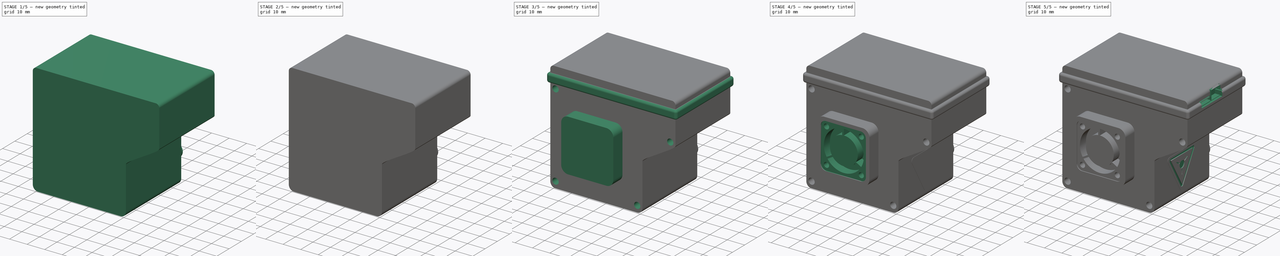
[diagram: build sequence overview — one tinted view per stage of 5, left to right]
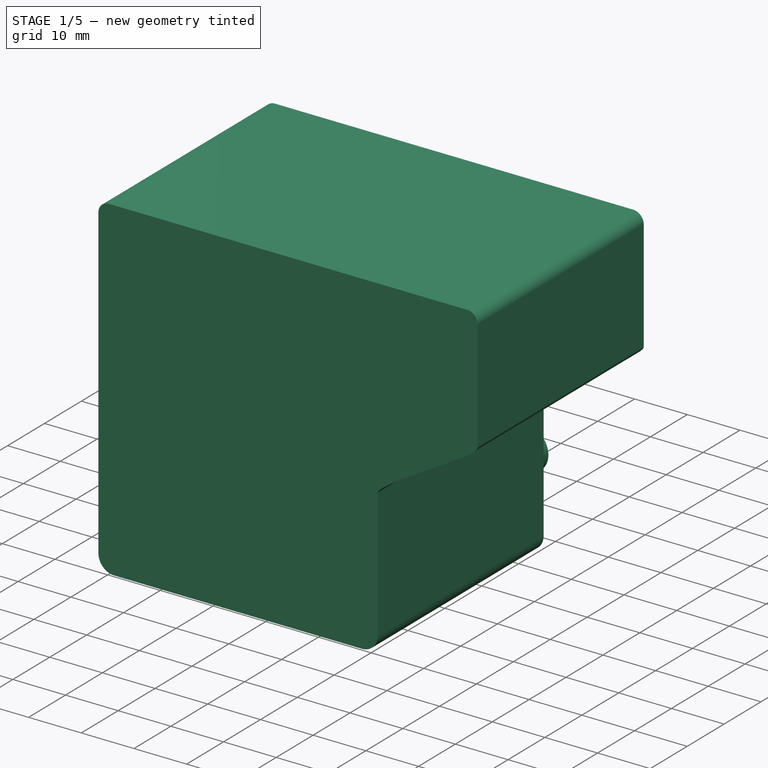
[diagram: stage 1 of 5 — iso view after this stage's code; geometry added in this stage tinted green]
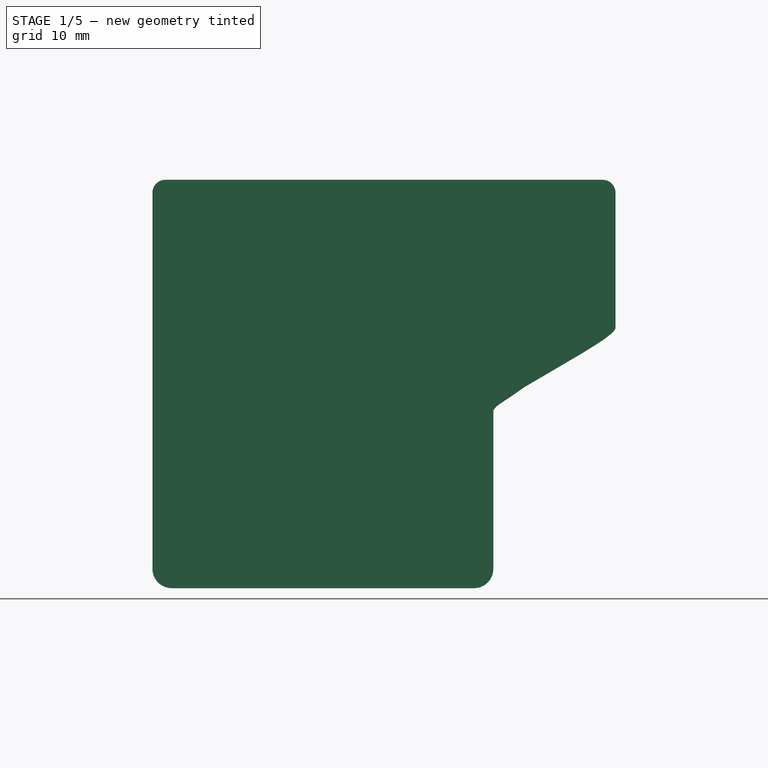
[diagram: stage 1 of 5 — front view after this stage's code; geometry added in this stage tinted green]
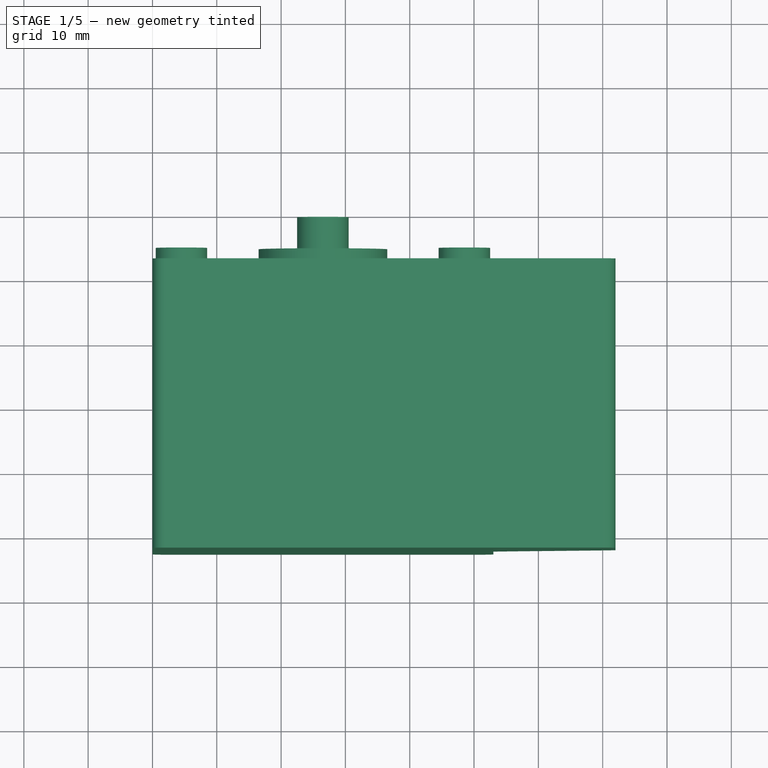
[diagram: stage 1 of 5 — top view after this stage's code; geometry added in this stage tinted green]
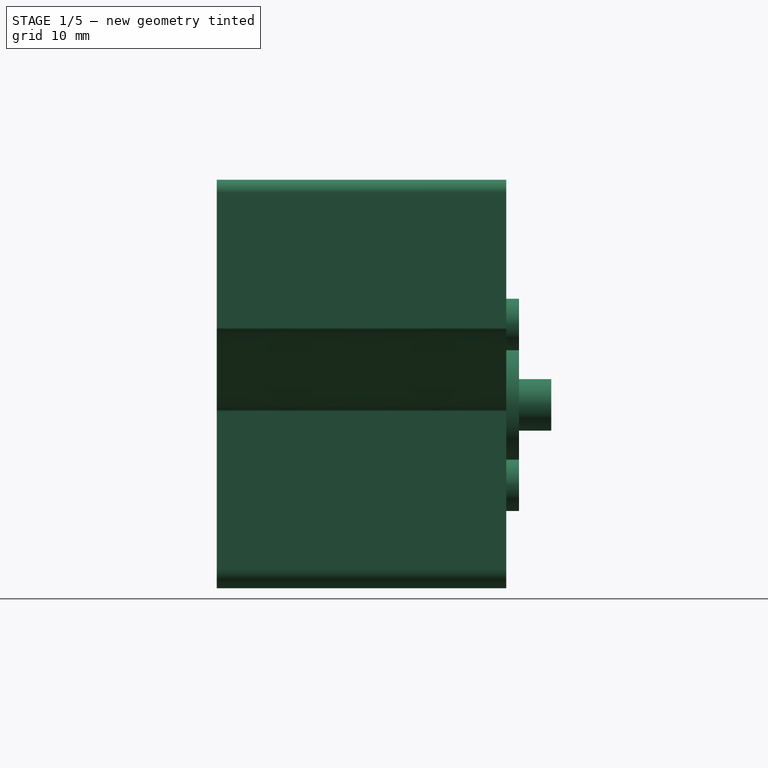
[diagram: stage 1 of 5 — right view after this stage's code; geometry added in this stage tinted green]
FCSTD DOCUMENT  (FreeCAD 0.17R13541 (Git))
Label: opc_n3
License: All rights reserved
LicenseURL: http://en.wikipedia.org/wiki/All_rights_reserved
objects: Sketcher::SketchObject×22, PartDesign::Pocket×11, PartDesign::Pad×9, PartDesign::Fillet×4, PartDesign::AdditivePipe×1, PartDesign::Body×1
note: 69 computed .brp shape members not serialized (recipe doc carries the construction recipe); baked Part::Feature solids carry a one-line shape summary decoded from their .brp

FEATURE [Sketcher::SketchObject] Sketch084
  MapMode = 5
  Placement = pos=(0,0,0) rot=(0.57735,-0.57735,0.57735;2.0944rad)
  sketch-geometry (17):
    g0: LineSegment StartX=29.75 StartY=0 StartZ=0 EndX=-28.75 EndY=0 EndZ=0
    g1: LineSegment StartX=-31.75 StartY=-3 StartZ=0 EndX=-31.75 EndY=-50 EndZ=0
    g2: LineSegment StartX=31.75 StartY=-2 StartZ=0 EndX=31.75 EndY=-70 EndZ=0
    g3: LineSegment StartX=-28.75 StartY=-53 StartZ=0 EndX=-4.25 EndY=-53 EndZ=0
    g4-g7: Circle [constr] x4 (B-spline internal-alignment scaffolding for g8; pole/knot coordinates omitted)
    g8: BSplineCurve PolesCount=4 KnotsCount=2 Degree=3 IsPeriodic=0
    g9: GeomPoint [constr] X=-4.25 Y=-53 Z=0
    g10: GeomPoint [constr] X=8.75 Y=-72 Z=0
    g11: LineSegment StartX=8.75 StartY=-72 StartZ=0 EndX=29.75 EndY=-72 EndZ=0
    g12: ArcOfCircle CenterX=-28.75 CenterY=-50 CenterZ=0 NormalX=0 NormalY=0 NormalZ=1 AngleXU=0 Radius=3 StartAngle=3.14159 EndAngle=4.71239
    g13: ArcOfCircle CenterX=-28.75 CenterY=-3 CenterZ=0 NormalX=0 NormalY=0 NormalZ=1 AngleXU=0 Radius=3 StartAngle=1.5708 EndAngle=3.14159
    g14: ArcOfCircle CenterX=29.75 CenterY=-2 CenterZ=0 NormalX=0 NormalY=0 NormalZ=1 AngleXU=0 Radius=2 StartAngle=0 EndAngle=1.5708
    g15: ArcOfCircle CenterX=29.75 CenterY=-70 CenterZ=0 NormalX=0 NormalY=0 NormalZ=1 AngleXU=0 Radius=2 StartAngle=4.71239 EndAngle=6.28319
    g16: LineSegment [constr] StartX=-31.75 StartY=-3 StartZ=0 EndX=-28.75 EndY=-3 EndZ=0
  constraints (39):
    c: Horizontal(g0)
    c: Vertical(g1)
    c: Vertical(g2)
    c: Horizontal(g3)
    c: PointOnObject(g-1,g0)
    c: Radius(g4) = 3
    c: Equal(g4,g5)
    c: Equal(g4,g6)
    c: Equal(g4,g7)
    c: InternalAlignment(g4-g7 -> g8) x4
    c: InternalAlignment(g9,g8)
    c: InternalAlignment(g10,g8)
    c: Horizontal(g6,g7)
    c: DistanceX(g6,g7) = 2
    c: Coincident(g4,g3)
    c: Horizontal(g5,g3)
    c: DistanceX(g3,g5) = 2
    c: Horizontal(g11)
    c: Coincident(g7,g11)
    c: Tangent(g1,g12) = -1.5708
    c: Tangent(g3,g12) = -1.5708
    c: Tangent(g1,g13) = -1.5708
    c: Tangent(g0,g13) = -1.5708
    c: Tangent(g0,g14) = -1.5708
    c: Tangent(g2,g14) = 1.5708
    c: Tangent(g11,g15) = -1.5708
    c: Tangent(g2,g15) = 1.5708
    c: DistanceX(g7,g2) = 23
    c: DistanceY(g11,g0) = 72
    c: DistanceX(g1,g2) = 63.5
    c: DistanceY(g3,g0) = 53
    c: DistanceX(g1,g3) = 27.5
    c: Coincident(g16,g1)
    c: Coincident(g16,g13)
    c: DistanceX(g16,g16) = 3
    c: DistanceX(g14,g2) = 2
    c: DistanceX(g1,g12) = 3
    c: DistanceX(g15,g2) = 2
    c: DistanceX(g1,g-1) = 31.75
FEATURE [PartDesign::Pad] Pad015  label="Base in"
  Length = 22.5
  Length2 = 100
  Placement = pos=(0,0,0) rot=(0.57735,-0.57735,0.57735;2.0944rad)
  Profile = -> Sketch084
  Type = 0
FEATURE [Sketcher::SketchObject] Sketch085
  MapMode = 5
  Placement = pos=(0,0,0) rot=(0.57735,-0.57735,0.57735;2.0944rad)
  sketch-geometry (17):
    g0: LineSegment StartX=29.75 StartY=0 StartZ=0 EndX=-28.75 EndY=0 EndZ=0
    g1: LineSegment StartX=-31.75 StartY=-3 StartZ=0 EndX=-31.75 EndY=-50 EndZ=0
    g2: LineSegment StartX=31.75 StartY=-2 StartZ=0 EndX=31.75 EndY=-70 EndZ=0
    g3: LineSegment StartX=-28.75 StartY=-53 StartZ=0 EndX=-4.25 EndY=-53 EndZ=0
    g4-g7: Circle [constr] x4 (B-spline internal-alignment scaffolding for g8; pole/knot coordinates omitted)
    g8: BSplineCurve PolesCount=4 KnotsCount=2 Degree=3 IsPeriodic=0
    g9: GeomPoint [constr] X=-4.25 Y=-53 Z=0
    g10: GeomPoint [constr] X=8.75 Y=-72 Z=0
    g11: LineSegment StartX=8.75 StartY=-72 StartZ=0 EndX=29.75 EndY=-72 EndZ=0
    g12: ArcOfCircle CenterX=-28.75 CenterY=-50 CenterZ=0 NormalX=0 NormalY=0 NormalZ=1 AngleXU=0 Radius=3 StartAngle=3.14159 EndAngle=4.71239
    g13: ArcOfCircle CenterX=-28.75 CenterY=-3 CenterZ=0 NormalX=0 NormalY=0 NormalZ=1 AngleXU=0 Radius=3 StartAngle=1.5708 EndAngle=3.14159
    g14: ArcOfCircle CenterX=29.75 CenterY=-2 CenterZ=0 NormalX=0 NormalY=0 NormalZ=1 AngleXU=0 Radius=2 StartAngle=0 EndAngle=1.5708
    g15: ArcOfCircle CenterX=29.75 CenterY=-70 CenterZ=0 NormalX=0 NormalY=0 NormalZ=1 AngleXU=0 Radius=2 StartAngle=4.71239 EndAngle=6.28319
    g16: LineSegment [constr] StartX=-31.75 StartY=-3 StartZ=0 EndX=-28.75 EndY=-3 EndZ=0
  constraints (39):
    c: Horizontal(g0)
    c: Vertical(g1)
    c: Vertical(g2)
    c: Horizontal(g3)
    c: PointOnObject(g-1,g0)
    c: Radius(g4) = 3
    c: Equal(g4,g5)
    c: Equal(g4,g6)
    c: Equal(g4,g7)
    c: InternalAlignment(g4-g7 -> g8) x4
    c: InternalAlignment(g9,g8)
    c: InternalAlignment(g10,g8)
    c: Horizontal(g6,g7)
    c: DistanceX(g6,g7) = 2
    c: Coincident(g4,g3)
    c: Horizontal(g5,g3)
    c: DistanceX(g3,g5) = 2
    c: Horizontal(g11)
    c: Coincident(g7,g11)
    c: Tangent(g1,g12) = -1.5708
    c: Tangent(g3,g12) = -1.5708
    c: Tangent(g1,g13) = -1.5708
    c: Tangent(g0,g13) = -1.5708
    c: Tangent(g0,g14) = -1.5708
    c: Tangent(g2,g14) = 1.5708
    c: Tangent(g11,g15) = -1.5708
    c: Tangent(g2,g15) = 1.5708
    c: DistanceX(g7,g2) = 23
    c: DistanceY(g11,g0) = 72
    c: DistanceX(g1,g2) = 63.5
    c: DistanceY(g3,g0) = 53
    c: DistanceX(g1,g3) = 27.5
    c: Coincident(g16,g1)
    c: Coincident(g16,g13)
    c: DistanceX(g16,g16) = 3
    c: DistanceX(g14,g2) = 2
    c: DistanceX(g1,g12) = 3
    c: DistanceX(g15,g2) = 2
    c: DistanceX(g1,g-1) = 31.75
FEATURE [PartDesign::Pad] Pad016  label="Base out"
  BaseFeature = -> Pad015
  Length = 22.5
  Length2 = 100
  Placement = pos=(0,0,0) rot=(0.57735,-0.57735,0.57735;2.0944rad)
  Profile = -> Sketch085
  Reversed = true
  Type = 0
FEATURE [Sketcher::SketchObject] Sketch086
  MapMode = 5
  Placement = pos=(0,22.5,0) rot=(0.57735,0.57735,0.57735;4.18879rad)
  Support = -> [Pad016]
  sketch-geometry (4):
    g0: LineSegment [constr] StartX=0 StartY=0 StartZ=0 EndX=31.75 EndY=0 EndZ=0
    g1: LineSegment [constr] StartX=31.75 StartY=0 StartZ=0 EndX=31.75 EndY=26.5 EndZ=0
    g2: LineSegment [constr] StartX=31.75 StartY=26.5 StartZ=0 EndX=-3.25 EndY=26.5 EndZ=0
    g3: Circle CenterX=-3.25 CenterY=26.5 CenterZ=0 NormalX=0 NormalY=0 NormalZ=1 AngleXU=0 Radius=10
  constraints (11):
    c: Coincident(g0,g-1)
    c: DistanceX(g0,g0) = 31.75
    c: Horizontal(g0)
    c: Coincident(g1,g0)
    c: Vertical(g1)
    c: DistanceY(g1,g1) = 26.5
    c: Coincident(g2,g1)
    c: Horizontal(g2)
    c: DistanceX(g2,g2) = 35
    c: Coincident(g2,g3)
    c: Radius(g3) = 10
FEATURE [PartDesign::Pad] Pad017  label="Foam input air"
  BaseFeature = -> Pad016
  Length = 2
  Length2 = 100
  Placement = pos=(0,0,0) rot=(0.57735,-0.57735,0.57735;2.0944rad)
  Profile = -> Sketch086
  Type = 0
FEATURE [Sketcher::SketchObject] Sketch087
  ExternalGeometry = -> [Pad017]
  MapMode = 5
  Placement = pos=(0,24.5,0) rot=(0.57735,0.57735,0.57735;4.18879rad)
  Support = -> [Pad017]
  sketch-geometry (2):
    g0: Circle CenterX=-3.25 CenterY=26.5 CenterZ=0 NormalX=0 NormalY=0 NormalZ=1 AngleXU=0 Radius=3
    g1: Circle CenterX=-3.25 CenterY=26.5 CenterZ=0 NormalX=0 NormalY=0 NormalZ=1 AngleXU=0 Radius=4
  constraints (4):
    c: Coincident(g1,g0)
    c: Coincident(g1,g-3)
    c: Radius(g1) = 4
    c: Radius(g0) = 3
FEATURE [PartDesign::Pad] Pad018  label="Pipe input air"
  BaseFeature = -> Pad017
  Length = 5
  Length2 = 100
  Placement = pos=(0,0,0) rot=(0.57735,-0.57735,0.57735;2.0944rad)
  Profile = -> Sketch087
  Type = 0
FEATURE [Sketcher::SketchObject] Sketch088
  MapMode = 5
  Placement = pos=(0,22.5,0) rot=(0.57735,0.57735,0.57735;4.18879rad)
  Support = -> [Pad016]
  sketch-geometry (12):
    g0: LineSegment [constr] StartX=0 StartY=0 StartZ=0 EndX=31.75 EndY=0 EndZ=0
    g1: LineSegment [constr] StartX=31.75 StartY=0 StartZ=0 EndX=31.75 EndY=26.5 EndZ=0
    g2: LineSegment [constr] StartX=31.75 StartY=26.5 StartZ=0 EndX=-3.25 EndY=26.5 EndZ=0
    g3: LineSegment [constr] StartX=-15.75 StartY=48.5 StartZ=0 EndX=9.25 EndY=48.5 EndZ=0
    g4: LineSegment [constr] StartX=9.25 StartY=48.5 StartZ=0 EndX=9.25 EndY=4.5 EndZ=0
    g5: LineSegment [constr] StartX=9.25 StartY=4.5 StartZ=0 EndX=-15.75 EndY=4.5 EndZ=0
    g6: LineSegment [constr] StartX=-15.75 StartY=4.5 StartZ=0 EndX=-15.75 EndY=48.5 EndZ=0
    g7: Circle CenterX=-15.75 CenterY=48.5 CenterZ=0 NormalX=0 NormalY=0 NormalZ=1 AngleXU=0 Radius=4
    g8: Circle CenterX=9.25 CenterY=48.5 CenterZ=0 NormalX=0 NormalY=0 NormalZ=1 AngleXU=0 Radius=4
    g9: Circle CenterX=9.25 CenterY=4.5 CenterZ=0 NormalX=0 NormalY=0 NormalZ=1 AngleXU=0 Radius=4
    g10: Circle CenterX=-15.75 CenterY=4.5 CenterZ=0 NormalX=0 NormalY=0 NormalZ=1 AngleXU=0 Radius=4
    g11: LineSegment [constr] StartX=-3.25 StartY=31.5 StartZ=0 EndX=-3.25 EndY=21.5 EndZ=0
  constraints (33):
    c: Coincident(g0,g-1)
    c: DistanceX(g0,g0) = 31.75
    c: Horizontal(g0)
    c: Coincident(g1,g0)
    c: Vertical(g1)
    c: DistanceY(g1,g1) = 26.5
    c: Coincident(g2,g1)
    c: Horizontal(g2)
    c: DistanceX(g2,g2) = 35
    c: Coincident(g3,g4)
    c: Coincident(g4,g5)
    c: Coincident(g5,g6)
    c: Coincident(g6,g3)
    c: Horizontal(g3)
    c: Horizontal(g5)
    c: Vertical(g4)
    c: Vertical(g6)
    c: DistanceY(g6,g6) = 44
    c: DistanceX(g3,g3) = 25
    c: Coincident(g10,g5)
    c: Coincident(g9,g4)
    c: Coincident(g3,g8)
    c: Coincident(g3,g7)
    c: Equal(g7,g10)
    c: Equal(g10,g9)
    c: Equal(g9,g8)
    c: Radius(g8) = 4
    c: PointOnObject(g2,g11)
    c: Vertical(g11)
    c: DistanceY(g11,g11) = 10
    c: Symmetric(g3,g3,g11)
    c: Symmetric(g11,g11,g2)
    c: DistanceY(g4,g1) = 22
FEATURE [PartDesign::Pad] Pad019  label="Base M3 screws"
  BaseFeature = -> Pad018
  Length = 2
  Length2 = 100
  Placement = pos=(0,0,0) rot=(0.57735,-0.57735,0.57735;2.0944rad)
  Profile = -> Sketch088
  Type = 0
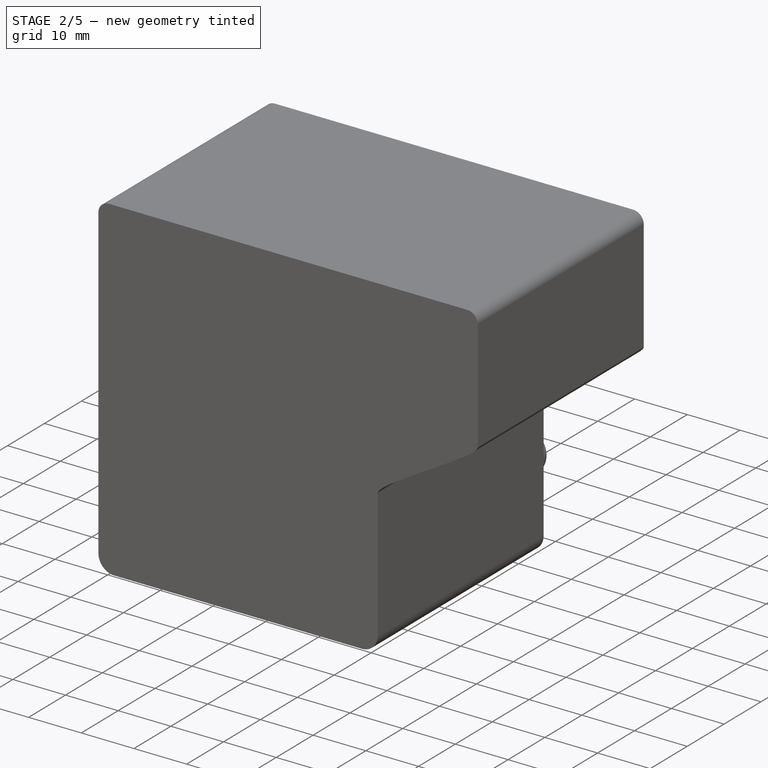
[diagram: stage 2 of 5 — iso view after this stage's code; geometry added in this stage tinted green]
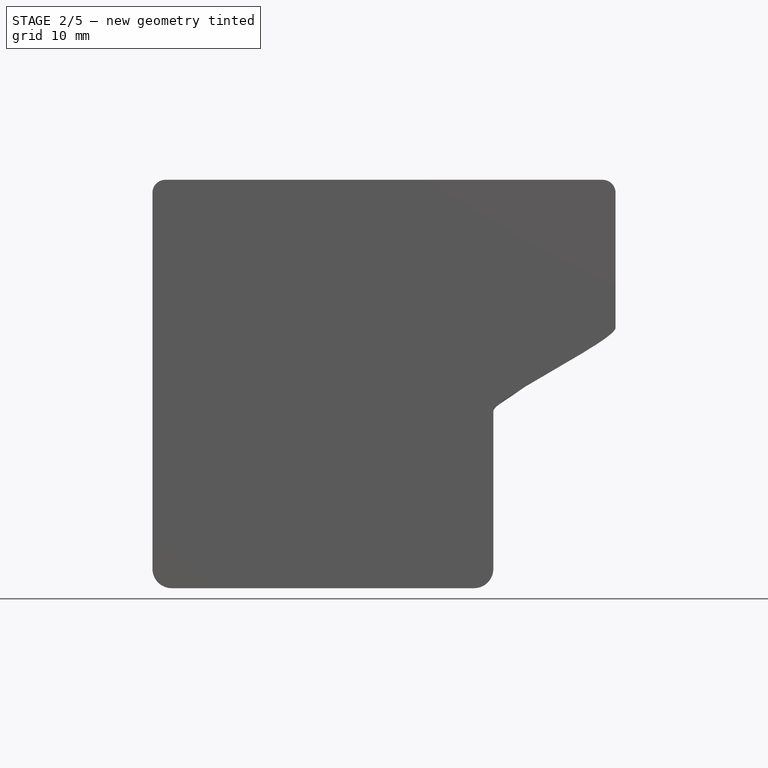
[diagram: stage 2 of 5 — front view after this stage's code; geometry added in this stage tinted green]
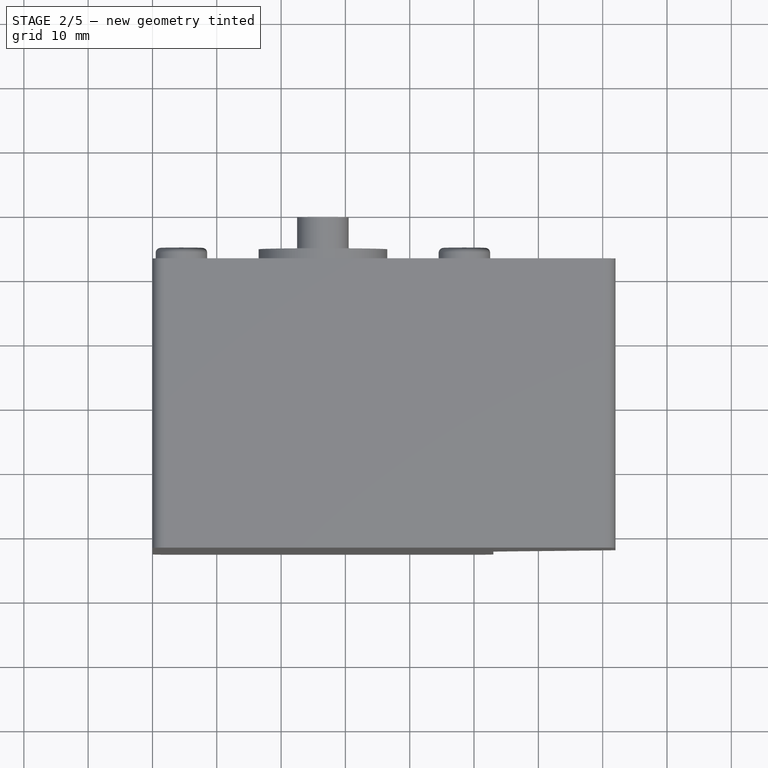
[diagram: stage 2 of 5 — top view after this stage's code; geometry added in this stage tinted green]
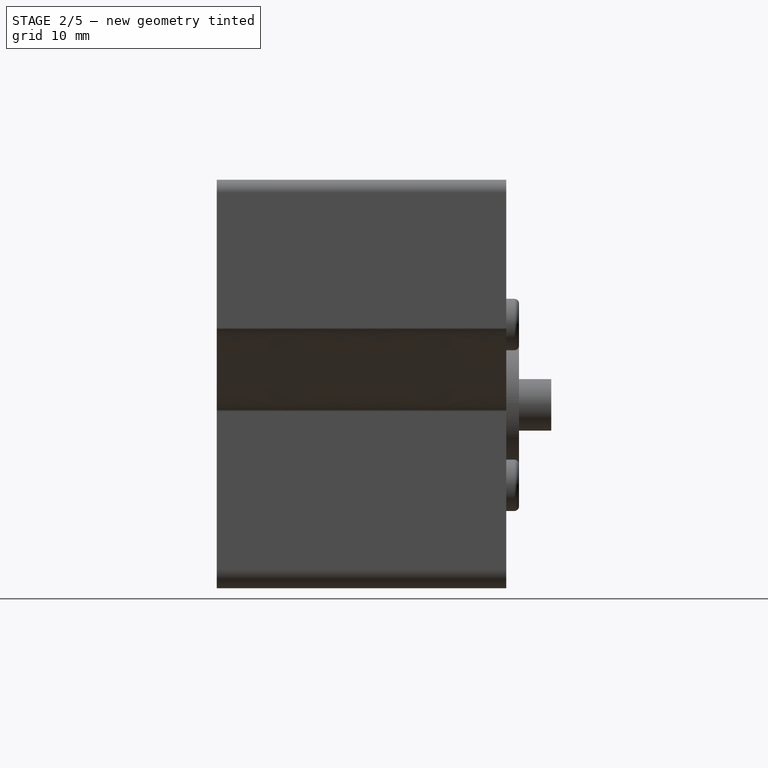
[diagram: stage 2 of 5 — right view after this stage's code; geometry added in this stage tinted green]
FEATURE [PartDesign::Fillet] Fillet  label="Fillet s1"
  Base = -> Pad019 [Edge59]
  BaseFeature = -> Pad019
  Placement = pos=(0,0,0) rot=(0.57735,-0.57735,0.57735;2.0944rad)
  Radius = 0.75
FEATURE [PartDesign::Fillet] Fillet001  label="Fillet s2"
  Base = -> Fillet [Edge41]
  BaseFeature = -> Fillet
  Placement = pos=(0,0,0) rot=(0.57735,-0.57735,0.57735;2.0944rad)
  Radius = 0.75
FEATURE [PartDesign::Fillet] Fillet002  label="Fillet s3"
  Base = -> Fillet001 [Edge45]
  BaseFeature = -> Fillet001
  Placement = pos=(0,0,0) rot=(0.57735,-0.57735,0.57735;2.0944rad)
  Radius = 0.75
FEATURE [PartDesign::Fillet] Fillet003  label="Fillet s4"
  Base = -> Fillet002 [Edge47]
  BaseFeature = -> Fillet002
  Placement = pos=(0,0,0) rot=(0.57735,-0.57735,0.57735;2.0944rad)
  Radius = 0.75
FEATURE [Sketcher::SketchObject] Sketch089
  MapMode = 5
  Placement = pos=(0,24.5,0) rot=(0.57735,0.57735,0.57735;4.18879rad)
  Support = -> [Fillet003]
  sketch-geometry (12):
    g0: LineSegment [constr] StartX=0 StartY=0 StartZ=0 EndX=31.75 EndY=0 EndZ=0
    g1: LineSegment [constr] StartX=31.75 StartY=0 StartZ=0 EndX=31.75 EndY=28 EndZ=0
    g2: LineSegment [constr] StartX=31.75 StartY=28 StartZ=0 EndX=-3.25 EndY=28 EndZ=0
    g3: LineSegment [constr] StartX=-15.75 StartY=48.5 StartZ=0 EndX=9.25 EndY=48.5 EndZ=0
    g4: LineSegment [constr] StartX=9.25 StartY=48.5 StartZ=0 EndX=9.25 EndY=4.5 EndZ=0
    g5: LineSegment [constr] StartX=9.25 StartY=4.5 StartZ=0 EndX=-15.75 EndY=4.5 EndZ=0
    g6: LineSegment [constr] StartX=-15.75 StartY=4.5 StartZ=0 EndX=-15.75 EndY=48.5 EndZ=0
    g7: Circle CenterX=-15.75 CenterY=48.5 CenterZ=0 NormalX=0 NormalY=0 NormalZ=1 AngleXU=0 Radius=2.5
    g8: Circle CenterX=9.25 CenterY=48.5 CenterZ=0 NormalX=0 NormalY=0 NormalZ=1 AngleXU=0 Radius=2.5
    g9: Circle CenterX=9.25 CenterY=4.5 CenterZ=0 NormalX=0 NormalY=0 NormalZ=1 AngleXU=0 Radius=2.5
    g10: Circle CenterX=-15.75 CenterY=4.5 CenterZ=0 NormalX=0 NormalY=0 NormalZ=1 AngleXU=0 Radius=2.5
    g11: LineSegment [constr] StartX=-3.25 StartY=33 StartZ=0 EndX=-3.25 EndY=23 EndZ=0
  constraints (33):
    c: Coincident(g0,g-1)
    c: DistanceX(g0,g0) = 31.75
    c: Horizontal(g0)
    c: Coincident(g1,g0)
    c: Vertical(g1)
    c: DistanceY(g1,g1) = 28
    c: Coincident(g2,g1)
    c: Horizontal(g2)
    c: DistanceX(g2,g2) = 35
    c: Coincident(g3,g4)
    c: Coincident(g4,g5)
    c: Coincident(g5,g6)
    c: Coincident(g6,g3)
    c: Horizontal(g3)
    c: Horizontal(g5)
    c: Vertical(g4)
    c: Vertical(g6)
    c: DistanceY(g6,g6) = 44
    c: DistanceX(g3,g3) = 25
    c: Coincident(g10,g5)
    c: Coincident(g9,g4)
    c: Coincident(g3,g8)
    c: Coincident(g3,g7)
    c: Equal(g7,g10)
    c: Equal(g10,g9)
    c: Equal(g9,g8)
    c: Radius(g8) = 2.5
    c: PointOnObject(g2,g11)
    c: Vertical(g11)
    c: DistanceY(g11,g11) = 10
    c: Symmetric(g3,g3,g11)
    c: Symmetric(g11,g11,g2)
    c: DistanceY(g4,g1) = 23.5
FEATURE [PartDesign::Pocket] Pocket017  label="Hole M3"
  BaseFeature = -> Fillet003
  Length = 5
  Length2 = 100
  Placement = pos=(0,0,0) rot=(0.57735,-0.57735,0.57735;2.0944rad)
  Profile = -> Sketch089
  Type = 0
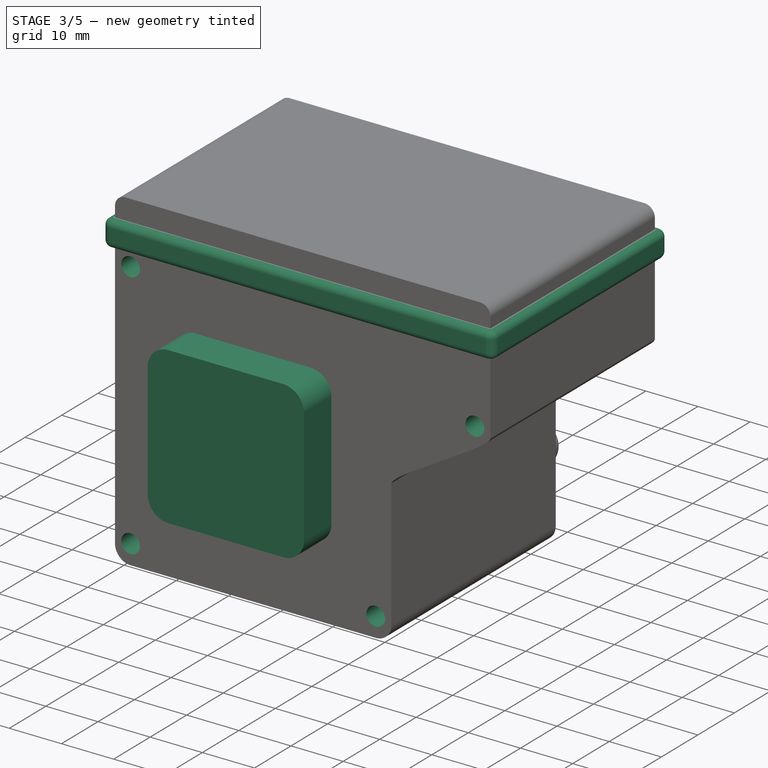
[diagram: stage 3 of 5 — iso view after this stage's code; geometry added in this stage tinted green]
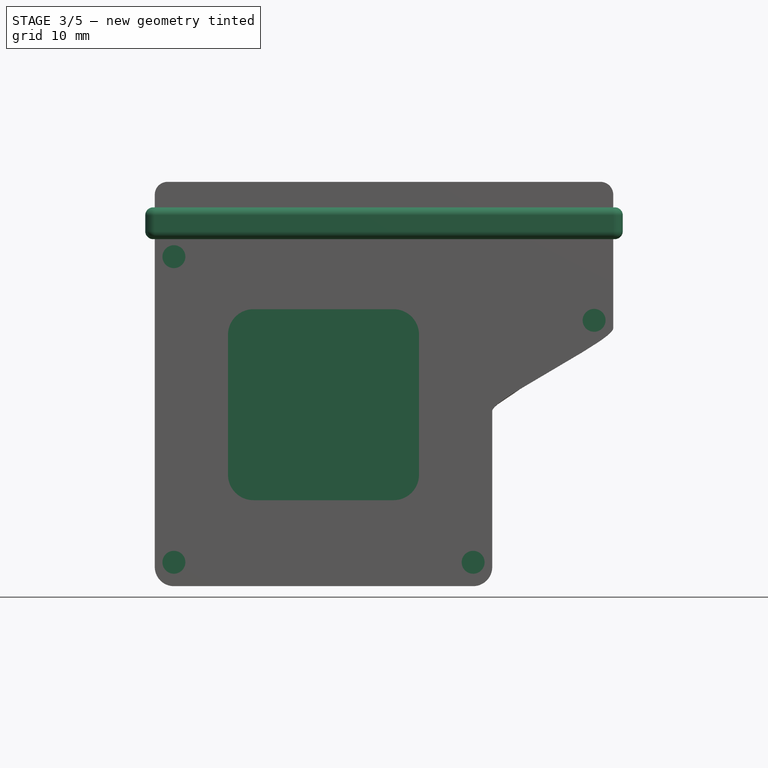
[diagram: stage 3 of 5 — front view after this stage's code; geometry added in this stage tinted green]
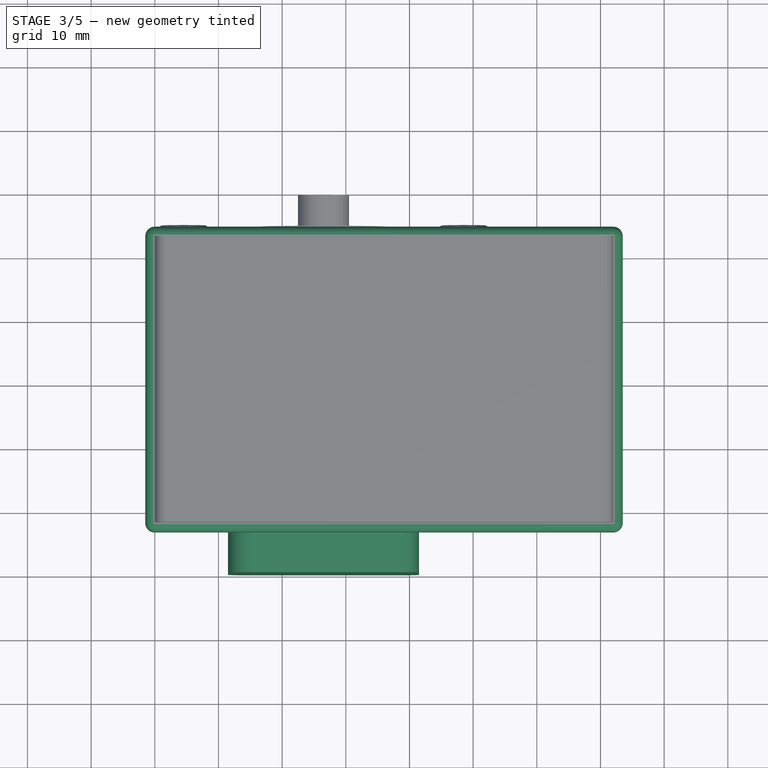
[diagram: stage 3 of 5 — top view after this stage's code; geometry added in this stage tinted green]
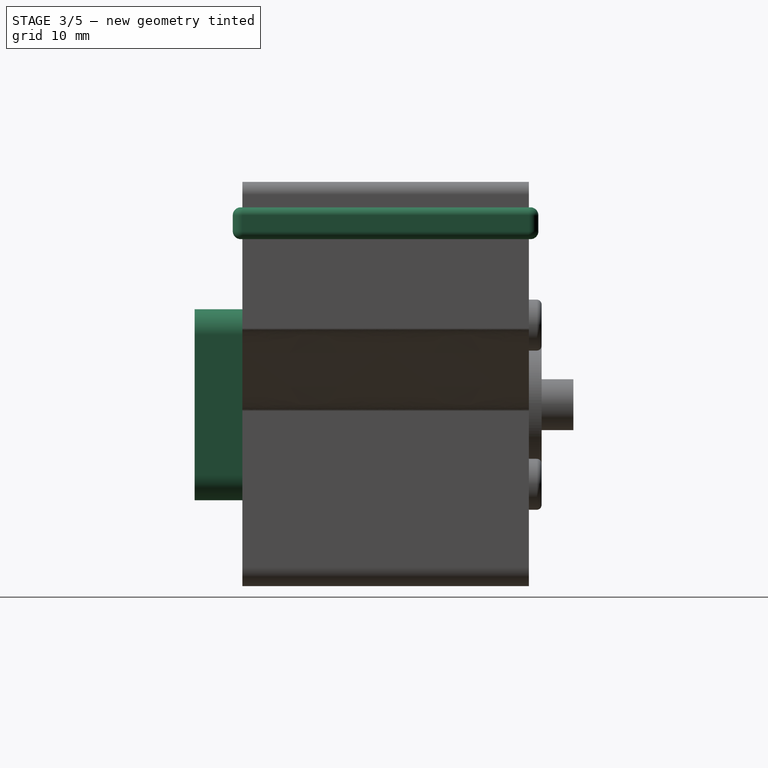
[diagram: stage 3 of 5 — right view after this stage's code; geometry added in this stage tinted green]
FEATURE [Sketcher::SketchObject] Sketch090
  AttachmentOffset = pos=(0,0,27.75) rot=(0,0,1;0rad)
  MapMode = 5
  Placement = pos=(0,0,27.75) rot=(0,0,1;0rad)
  Support = -> [XY_Plane001]
  sketch-geometry (4):
    g0: LineSegment StartX=0 StartY=22.5 StartZ=0 EndX=72 EndY=22.5 EndZ=0
    g1: LineSegment StartX=72 StartY=22.5 StartZ=0 EndX=72 EndY=-22.5 EndZ=0
    g2: LineSegment StartX=72 StartY=-22.5 StartZ=0 EndX=0 EndY=-22.5 EndZ=0
    g3: LineSegment StartX=0 StartY=-22.5 StartZ=0 EndX=0 EndY=22.5 EndZ=0
  constraints (11):
    c: Coincident(g0,g1)
    c: Coincident(g1,g2)
    c: Coincident(g2,g3)
    c: Coincident(g3,g0)
    c: Horizontal(g0)
    c: Horizontal(g2)
    c: Vertical(g1)
    c: Vertical(g3)
    c: DistanceY(g3,g3) = 45
    c: DistanceX(g2,g2) = 72
    c: Symmetric(g2,g0,g-1)
FEATURE [Sketcher::SketchObject] Sketch091
  MapMode = 5
  Placement = pos=(0,22.5,0) rot=(0.57735,0.57735,0.57735;4.18879rad)
  Support = -> [Pocket017]
  sketch-geometry (9):
    g0: LineSegment [constr] StartX=0 StartY=0 StartZ=0 EndX=27.75 EndY=0 EndZ=0
    g1: LineSegment StartX=22.75 StartY=0 StartZ=0 EndX=22.75 EndY=-0.25 EndZ=0
    g2: LineSegment StartX=24 StartY=-1.5 StartZ=0 EndX=26.5 EndY=-1.5 EndZ=0
    g3: LineSegment StartX=27.75 StartY=-0.25 StartZ=0 EndX=27.75 EndY=0 EndZ=0
    g4: ArcOfCircle CenterX=26.5 CenterY=-0.25 CenterZ=0 NormalX=0 NormalY=0 NormalZ=1 AngleXU=0 Radius=1.25 StartAngle=4.71239 EndAngle=6.28319
    g5: ArcOfCircle CenterX=24 CenterY=-0.25 CenterZ=0 NormalX=0 NormalY=0 NormalZ=1 AngleXU=0 Radius=1.25 StartAngle=3.14159 EndAngle=4.71239
    g6: LineSegment [constr] StartX=22.75 StartY=-0.25 StartZ=0 EndX=24 EndY=-0.25 EndZ=0
    g7: LineSegment [constr] StartX=26.5 StartY=-0.25 StartZ=0 EndX=27.75 EndY=-0.25 EndZ=0
    g8: LineSegment StartX=22.75 StartY=0 StartZ=0 EndX=27.75 EndY=0 EndZ=0
  constraints (22):
    c: Coincident(g-1,g0)
    c: Horizontal(g0)
    c: DistanceX(g0,g0) = 27.75
    c: Tangent(g3,g4) = -1.5708
    c: Tangent(g2,g4) = -1.5708
    c: Tangent(g1,g5) = -1.5708
    c: Tangent(g2,g5) = -1.5708
    c: Vertical(g3)
    c: Vertical(g1)
    c: Horizontal(g2)
    c: Coincident(g7,g3)
    c: Coincident(g4,g7)
    c: Coincident(g6,g5)
    c: Coincident(g6,g1)
    c: Equal(g6,g7)
    c: Coincident(g8,g1)
    c: Coincident(g8,g3)
    c: Horizontal(g8)
    c: Coincident(g3,g0)
    c: DistanceX(g8,g8) = 5
    c: DistanceX(g2,g2) = 2.5
    c: DistanceY(g2,g0) = 1.5
FEATURE [Sketcher::SketchObject] Sketch092
  MapMode = 5
  Placement = pos=(0,22.5,0) rot=(0.57735,0.57735,0.57735;4.18879rad)
  sketch-geometry (4):
    g0: Circle CenterX=-28 CenterY=3 CenterZ=0 NormalX=0 NormalY=0 NormalZ=1 AngleXU=0 Radius=1.8
    g1: Circle CenterX=-28 CenterY=50 CenterZ=0 NormalX=0 NormalY=0 NormalZ=1 AngleXU=0 Radius=1.8
    g2: Circle CenterX=20 CenterY=3 CenterZ=0 NormalX=0 NormalY=0 NormalZ=1 AngleXU=0 Radius=1.8
    g3: Circle CenterX=10 CenterY=69 CenterZ=0 NormalX=0 NormalY=0 NormalZ=1 AngleXU=0 Radius=1.8
  constraints (12):
    c: Vertical(g0,g1)
    c: Horizontal(g0,g2)
    c: DistanceY(g0,g1) = 47
    c: DistanceY(g-1,g2) = 3
    c: DistanceX(g0,g2) = 48
    c: DistanceX(g-1,g2) = 20
    c: Equal(g1,g0)
    c: Equal(g0,g2)
    c: Equal(g2,g3)
    c: Radius(g2) = 1.8
    c: DistanceY(g-1,g3) = 69
    c: DistanceX(g-1,g3) = 10
FEATURE [PartDesign::AdditivePipe] AdditivePipe006  label="Deformation bottom"
  AuxilleryCurvelinear = true
  AuxillerySpineTangent = false
  BaseFeature = -> Pocket017
  Binormal = (0,0,0)
  Mode = 0
  Placement = pos=(0,0,0) rot=(0.57735,-0.57735,0.57735;2.0944rad)
  Profile = -> Sketch091
  Spine = -> Sketch090 [Edge4,Edge3,Edge2,Edge1]
  SpineTangent = false
  Transformation = 0
  Transition = 2
FEATURE [PartDesign::Pocket] Pocket018  label="Hole M2 screw in"
  BaseFeature = -> AdditivePipe006
  Length = 10
  Length2 = 100
  Placement = pos=(0,0,0) rot=(0.57735,-0.57735,0.57735;2.0944rad)
  Profile = -> Sketch092
  Type = 0
FEATURE [Sketcher::SketchObject] Sketch093
  ExternalGeometry = -> [Pocket018]
  MapMode = 5
  Placement = pos=(0,12.5,0) rot=(0.57735,0.57735,0.57735;4.18879rad)
  Support = -> [Pocket018]
  sketch-geometry (28):
    g0: LineSegment StartX=-27.134 StartY=2.5 StartZ=0 EndX=-27.134 EndY=3.5 EndZ=0
    g1: LineSegment StartX=-27.134 StartY=3.5 StartZ=0 EndX=-28 EndY=4 EndZ=0
    g2: LineSegment StartX=-28 StartY=4 StartZ=0 EndX=-28.866 EndY=3.5 EndZ=0
    g3: LineSegment StartX=-28.866 StartY=3.5 StartZ=0 EndX=-28.866 EndY=2.5 EndZ=0
    g4: LineSegment StartX=-28.866 StartY=2.5 StartZ=0 EndX=-28 EndY=2 EndZ=0
    g5: LineSegment StartX=-28 StartY=2 StartZ=0 EndX=-27.134 EndY=2.5 EndZ=0
    g6: Circle [constr] CenterX=-28 CenterY=3 CenterZ=0 NormalX=0 NormalY=0 NormalZ=1 AngleXU=0 Radius=1
    g7: LineSegment StartX=-27.134 StartY=49.5 StartZ=0 EndX=-27.134 EndY=50.5 EndZ=0
    g8: LineSegment StartX=-27.134 StartY=50.5 StartZ=0 EndX=-28 EndY=51 EndZ=0
    g9: LineSegment StartX=-28 StartY=51 StartZ=0 EndX=-28.866 EndY=50.5 EndZ=0
    g10: LineSegment StartX=-28.866 StartY=50.5 StartZ=0 EndX=-28.866 EndY=49.5 EndZ=0
    g11: LineSegment StartX=-28.866 StartY=49.5 StartZ=0 EndX=-28 EndY=49 EndZ=0
    g12: LineSegment StartX=-28 StartY=49 StartZ=0 EndX=-27.134 EndY=49.5 EndZ=0
    g13: Circle [constr] CenterX=-28 CenterY=50 CenterZ=0 NormalX=0 NormalY=0 NormalZ=1 AngleXU=0 Radius=1
    g14: LineSegment StartX=10.866 StartY=68.5 StartZ=0 EndX=10.866 EndY=69.5 EndZ=0
    g15: LineSegment StartX=10.866 StartY=69.5 StartZ=0 EndX=10 EndY=70 EndZ=0
    g16: LineSegment StartX=10 StartY=70 StartZ=0 EndX=9.13397 EndY=69.5 EndZ=0
    g17: LineSegment StartX=9.13397 StartY=69.5 StartZ=0 EndX=9.13397 EndY=68.5 EndZ=0
    g18: LineSegment StartX=9.13397 StartY=68.5 StartZ=0 EndX=10 EndY=68 EndZ=0
    g19: LineSegment StartX=10 StartY=68 StartZ=0 EndX=10.866 EndY=68.5 EndZ=0
    g20: Circle [constr] CenterX=10 CenterY=69 CenterZ=0 NormalX=0 NormalY=0 NormalZ=1 AngleXU=0 Radius=1
    g21: LineSegment StartX=20.866 StartY=2.5 StartZ=0 EndX=20.866 EndY=3.5 EndZ=0
    g22: LineSegment StartX=20.866 StartY=3.5 StartZ=0 EndX=20 EndY=4 EndZ=0
    g23: LineSegment StartX=20 StartY=4 StartZ=0 EndX=19.134 EndY=3.5 EndZ=0
    g24: LineSegment StartX=19.134 StartY=3.5 StartZ=0 EndX=19.134 EndY=2.5 EndZ=0
    g25: LineSegment StartX=19.134 StartY=2.5 StartZ=0 EndX=20 EndY=2 EndZ=0
    g26: LineSegment StartX=20 StartY=2 StartZ=0 EndX=20.866 EndY=2.5 EndZ=0
    g27: Circle [constr] CenterX=20 CenterY=3 CenterZ=0 NormalX=0 NormalY=0 NormalZ=1 AngleXU=0 Radius=1
  constraints (60):
    c: Coincident(g0,g1)
    c: Coincident(g1,g2)
    c: Coincident(g2,g3)
    c: Coincident(g3,g4)
    c: Coincident(g4,g5)
    c: Coincident(g5,g0)
    c: Equal(g0, g1-g5) x5
    c: PointOnObject(g0,g6)
    c: PointOnObject(g1,g6)
    c: PointOnObject(g2,g6)
    c: PointOnObject(g3,g6)
    c: PointOnObject(g4,g6)
    c: PointOnObject(g5,g6)
    c: Coincident(g7,g8)
    c: Coincident(g8,g9)
    c: Coincident(g9,g10)
    c: Coincident(g10,g11)
    c: Coincident(g11,g12)
    c: Coincident(g12,g7)
    c: Equal(g7, g8-g12) x5
    c: PointOnObject(g7,g13)
    c: PointOnObject(g8,g13)
    c: PointOnObject(g9,g13)
    c: PointOnObject(g10,g13)
    c: PointOnObject(g11,g13)
    c: PointOnObject(g12,g13)
    c: Coincident(g14,g15)
    c: Coincident(g15,g16)
    c: Coincident(g16,g17)
    c: Coincident(g17,g18)
    c: Coincident(g18,g19)
    c: Coincident(g19,g14)
    c: Equal(g14, g15-g19) x5
    c: PointOnObject(g14,g20)
    c: PointOnObject(g15,g20)
    c: PointOnObject(g16,g20)
    c: PointOnObject(g17,g20)
    c: PointOnObject(g18,g20)
    c: PointOnObject(g19,g20)
    c: Coincident(g21,g22)
    c: Coincident(g22,g23)
    c: Coincident(g23,g24)
    c: Coincident(g24,g25)
    c: Coincident(g25,g26)
    c: Coincident(g26,g21)
    c: Equal(g21, g22-g26) x5
    c: PointOnObject(g21,g27)
    c: PointOnObject(g22,g27)
    c: PointOnObject(g23,g27)
    c: PointOnObject(g24,g27)
    c: PointOnObject(g25,g27)
    c: PointOnObject(g26,g27)
    c: Equal(g6,g27)
    c: Equal(g27,g20)
    c: Equal(g20,g13)
    c: Vertical(g20,g15)
    c: Vertical(g13,g8)
    c: Vertical(g6,g1)
    c: Vertical(g27,g22)
    c: Radius(g13) = 1
FEATURE [PartDesign::Pocket] Pocket019  label="M2 nuts in"
  BaseFeature = -> Pocket018
  Length = 0.5
  Length2 = 100
  Placement = pos=(0,0,0) rot=(0.57735,-0.57735,0.57735;2.0944rad)
  Profile = -> Sketch093
  Type = 0
FEATURE [Sketcher::SketchObject] Sketch094
  MapMode = 5
  Placement = pos=(0,-22.5,0) rot=(0.57735,-0.57735,0.57735;2.0944rad)
  Support = -> [Pocket019]
  sketch-geometry (11):
    g0: LineSegment [constr] StartX=0 StartY=0 StartZ=0 EndX=31.75 EndY=0 EndZ=0
    g1: LineSegment [constr] StartX=31.75 StartY=0 StartZ=0 EndX=31.75 EndY=-26.5 EndZ=0
    g2: LineSegment [constr] StartX=31.75 StartY=-26.5 StartZ=0 EndX=-3.25 EndY=-26.5 EndZ=0
    g3: LineSegment StartX=-14.25 StartY=-11.5 StartZ=0 EndX=7.75 EndY=-11.5 EndZ=0
    g4: LineSegment StartX=11.75 StartY=-15.5 StartZ=0 EndX=11.75 EndY=-37.5 EndZ=0
    g5: LineSegment StartX=7.75 StartY=-41.5 StartZ=0 EndX=-14.25 EndY=-41.5 EndZ=0
    g6: LineSegment StartX=-18.25 StartY=-37.5 StartZ=0 EndX=-18.25 EndY=-15.5 EndZ=0
    g7: ArcOfCircle CenterX=-14.25 CenterY=-15.5 CenterZ=0 NormalX=0 NormalY=0 NormalZ=1 AngleXU=0 Radius=4 StartAngle=1.5708 EndAngle=3.14159
    g8: ArcOfCircle CenterX=7.75 CenterY=-15.5 CenterZ=0 NormalX=0 NormalY=0 NormalZ=1 AngleXU=0 Radius=4 StartAngle=0 EndAngle=1.5708
    g9: ArcOfCircle CenterX=7.75 CenterY=-37.5 CenterZ=0 NormalX=0 NormalY=0 NormalZ=1 AngleXU=0 Radius=4 StartAngle=4.71239 EndAngle=6.28319
    g10: ArcOfCircle CenterX=-14.25 CenterY=-37.5 CenterZ=0 NormalX=0 NormalY=0 NormalZ=1 AngleXU=0 Radius=4 StartAngle=3.14159 EndAngle=4.71239
  constraints (28):
    c: Coincident(g0,g-1)
    c: DistanceX(g0,g0) = 31.75
    c: Horizontal(g0)
    c: Coincident(g1,g0)
    c: Vertical(g1)
    c: DistanceY(g1,g1) = -26.5
    c: Coincident(g2,g1)
    c: Horizontal(g2)
    c: DistanceX(g2,g2) = 35
    c: Horizontal(g3)
    c: Horizontal(g5)
    c: Vertical(g4)
    c: Vertical(g6)
    c: Equal(g5,g4)
    c: Tangent(g6,g7) = 1.5708
    c: Tangent(g3,g7) = 1.5708
    c: Tangent(g3,g8) = 1.5708
    c: Tangent(g4,g8) = 1.5708
    c: Tangent(g4,g9) = 1.5708
    c: Tangent(g5,g9) = 1.5708
    c: Tangent(g5,g10) = 1.5708
    c: Tangent(g6,g10) = 1.5708
    c: Vertical(g7,g10)
    c: Horizontal(g10,g9)
    c: Vertical(g8,g9)
    c: Symmetric(g8,g10,g2)
    c: DistanceX(g6,g4) = 30
    c: DistanceY(g5,g9) = 4
FEATURE [PartDesign::Pad] Pad020  label="Blower base"
  BaseFeature = -> Pocket019
  Length = 7.5
  Length2 = 100
  Placement = pos=(0,0,0) rot=(0.57735,-0.57735,0.57735;2.0944rad)
  Profile = -> Sketch094
  Type = 0
FEATURE [Sketcher::SketchObject] Sketch095
  AttachmentOffset = pos=(0,0,0) rot=(1,0,0;3.14159rad)
  MapMode = 5
  Placement = pos=(0,-22.5,0) rot=(0.57735,0.57735,0.57735;4.18879rad)
  Support = -> [Pocket018]
  sketch-geometry (4):
    g0: Circle CenterX=-28 CenterY=3 CenterZ=0 NormalX=0 NormalY=0 NormalZ=1 AngleXU=0 Radius=1.8
    g1: Circle CenterX=-28 CenterY=50 CenterZ=0 NormalX=0 NormalY=0 NormalZ=1 AngleXU=0 Radius=1.8
    g2: Circle CenterX=20 CenterY=3 CenterZ=0 NormalX=0 NormalY=0 NormalZ=1 AngleXU=0 Radius=1.8
    g3: Circle CenterX=10 CenterY=69 CenterZ=0 NormalX=0 NormalY=0 NormalZ=1 AngleXU=0 Radius=1.8
  constraints (12):
    c: Vertical(g0,g1)
    c: Horizontal(g0,g2)
    c: DistanceY(g0,g1) = 47
    c: DistanceY(g-1,g2) = 3
    c: DistanceX(g0,g2) = 48
    c: DistanceX(g-1,g2) = 20
    c: Equal(g1,g0)
    c: Equal(g0,g2)
    c: Equal(g2,g3)
    c: Radius(g2) = 1.8
    c: DistanceY(g-1,g3) = 69
    c: DistanceX(g-1,g3) = 10
FEATURE [PartDesign::Pocket] Pocket020  label="Hole M2 screw out"
  BaseFeature = -> Pad020
  Length = 10
  Length2 = 100
  Placement = pos=(0,0,0) rot=(0.57735,-0.57735,0.57735;2.0944rad)
  Profile = -> Sketch095
  Reversed = true
  Type = 0
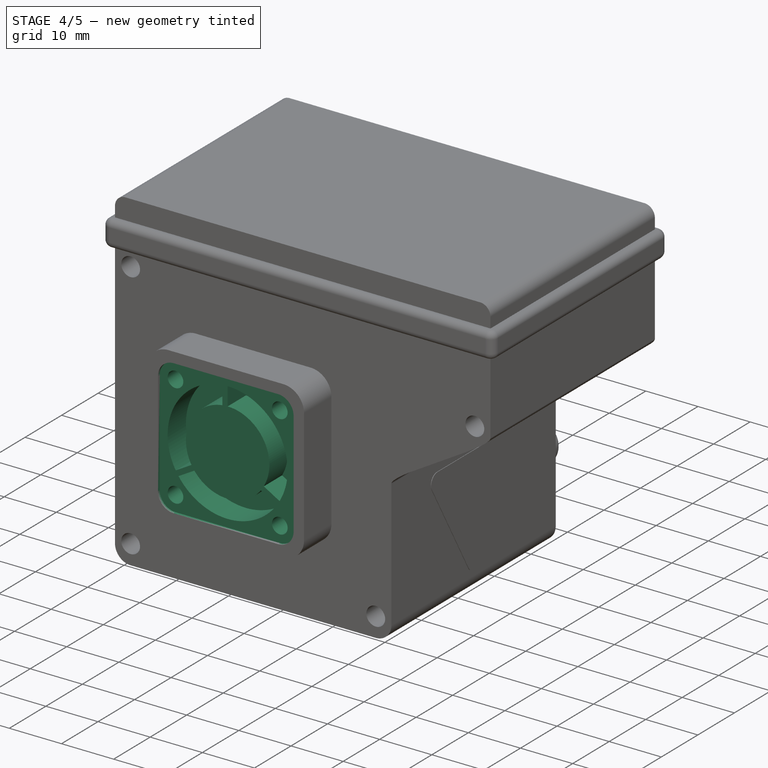
[diagram: stage 4 of 5 — iso view after this stage's code; geometry added in this stage tinted green]
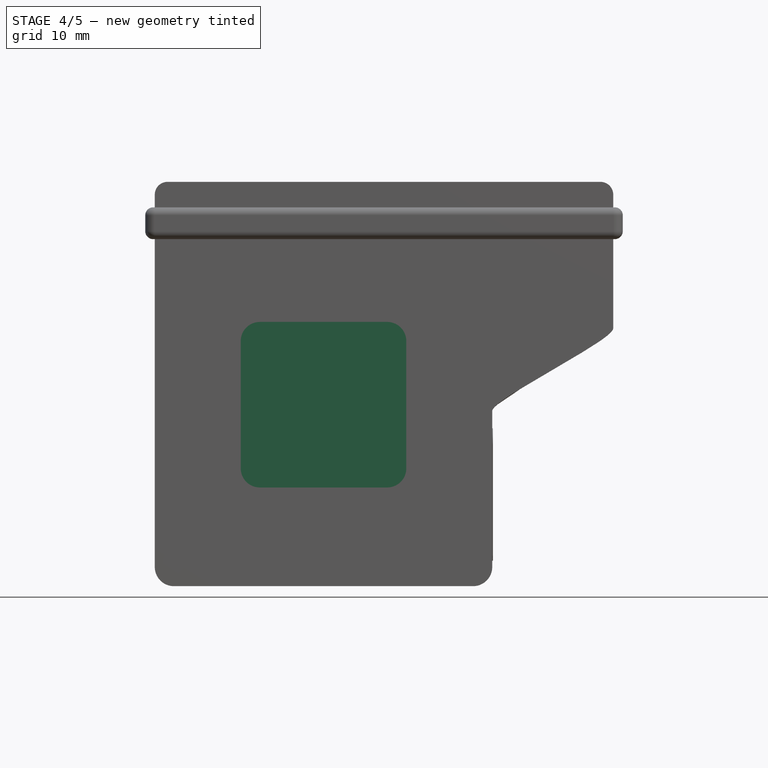
[diagram: stage 4 of 5 — front view after this stage's code; geometry added in this stage tinted green]
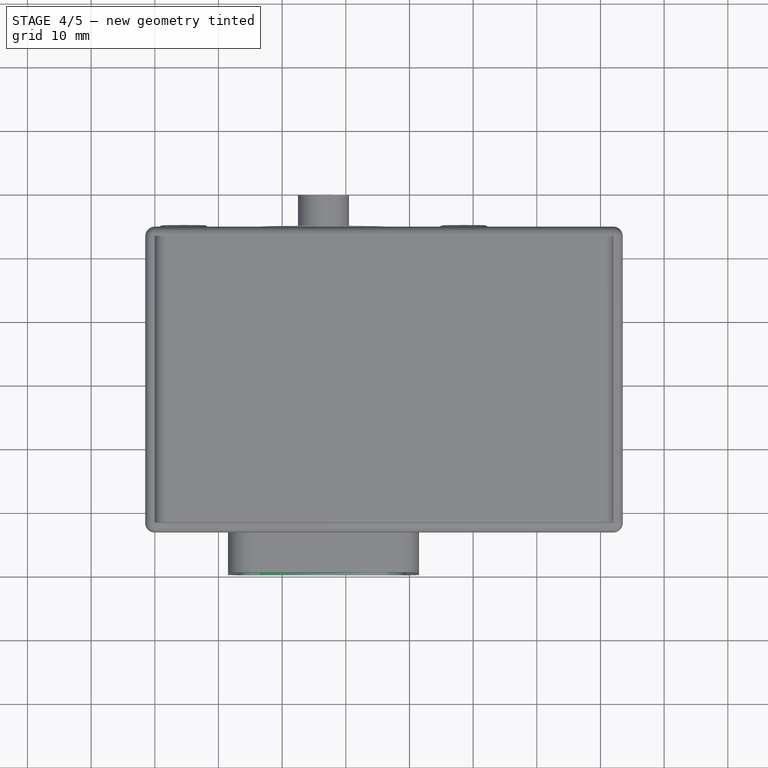
[diagram: stage 4 of 5 — top view after this stage's code; geometry added in this stage tinted green]
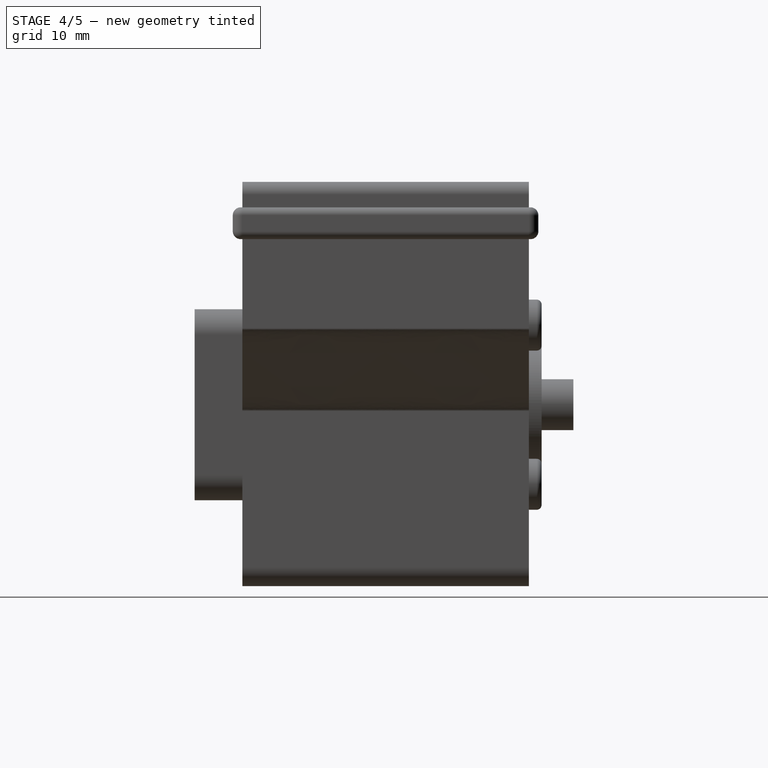
[diagram: stage 4 of 5 — right view after this stage's code; geometry added in this stage tinted green]
FEATURE [Sketcher::SketchObject] Sketch096
  AttachmentOffset = pos=(0,0,0) rot=(1,0,0;3.14159rad)
  ExternalGeometry = -> [Pocket018]
  MapMode = 5
  Placement = pos=(3e-12,-12.5,0) rot=(0.57735,0.57735,0.57735;4.18879rad)
  Support = -> [Pocket020]
  sketch-geometry (28):
    g0: LineSegment StartX=-27.134 StartY=2.5 StartZ=0 EndX=-27.134 EndY=3.5 EndZ=0
    g1: LineSegment StartX=-27.134 StartY=3.5 StartZ=0 EndX=-28 EndY=4 EndZ=0
    g2: LineSegment StartX=-28 StartY=4 StartZ=0 EndX=-28.866 EndY=3.5 EndZ=0
    g3: LineSegment StartX=-28.866 StartY=3.5 StartZ=0 EndX=-28.866 EndY=2.5 EndZ=0
    g4: LineSegment StartX=-28.866 StartY=2.5 StartZ=0 EndX=-28 EndY=2 EndZ=0
    g5: LineSegment StartX=-28 StartY=2 StartZ=0 EndX=-27.134 EndY=2.5 EndZ=0
    g6: Circle [constr] CenterX=-28 CenterY=3 CenterZ=0 NormalX=0 NormalY=0 NormalZ=1 AngleXU=0 Radius=1
    g7: LineSegment StartX=-27.134 StartY=49.5 StartZ=0 EndX=-27.134 EndY=50.5 EndZ=0
    g8: LineSegment StartX=-27.134 StartY=50.5 StartZ=0 EndX=-28 EndY=51 EndZ=0
    g9: LineSegment StartX=-28 StartY=51 StartZ=0 EndX=-28.866 EndY=50.5 EndZ=0
    g10: LineSegment StartX=-28.866 StartY=50.5 StartZ=0 EndX=-28.866 EndY=49.5 EndZ=0
    g11: LineSegment StartX=-28.866 StartY=49.5 StartZ=0 EndX=-28 EndY=49 EndZ=0
    g12: LineSegment StartX=-28 StartY=49 StartZ=0 EndX=-27.134 EndY=49.5 EndZ=0
    g13: Circle [constr] CenterX=-28 CenterY=50 CenterZ=0 NormalX=0 NormalY=0 NormalZ=1 AngleXU=0 Radius=1
    g14: LineSegment StartX=10.866 StartY=68.5 StartZ=0 EndX=10.866 EndY=69.5 EndZ=0
    g15: LineSegment StartX=10.866 StartY=69.5 StartZ=0 EndX=10 EndY=70 EndZ=0
    g16: LineSegment StartX=10 StartY=70 StartZ=0 EndX=9.13397 EndY=69.5 EndZ=0
    g17: LineSegment StartX=9.13397 StartY=69.5 StartZ=0 EndX=9.13397 EndY=68.5 EndZ=0
    g18: LineSegment StartX=9.13397 StartY=68.5 StartZ=0 EndX=10 EndY=68 EndZ=0
    g19: LineSegment StartX=10 StartY=68 StartZ=0 EndX=10.866 EndY=68.5 EndZ=0
    g20: Circle [constr] CenterX=10 CenterY=69 CenterZ=0 NormalX=0 NormalY=0 NormalZ=1 AngleXU=0 Radius=1
    g21: LineSegment StartX=20.866 StartY=2.5 StartZ=0 EndX=20.866 EndY=3.5 EndZ=0
    g22: LineSegment StartX=20.866 StartY=3.5 StartZ=0 EndX=20 EndY=4 EndZ=0
    g23: LineSegment StartX=20 StartY=4 StartZ=0 EndX=19.134 EndY=3.5 EndZ=0
    g24: LineSegment StartX=19.134 StartY=3.5 StartZ=0 EndX=19.134 EndY=2.5 EndZ=0
    g25: LineSegment StartX=19.134 StartY=2.5 StartZ=0 EndX=20 EndY=2 EndZ=0
    g26: LineSegment StartX=20 StartY=2 StartZ=0 EndX=20.866 EndY=2.5 EndZ=0
    g27: Circle [constr] CenterX=20 CenterY=3 CenterZ=0 NormalX=0 NormalY=0 NormalZ=1 AngleXU=0 Radius=1
  constraints (60):
    c: Coincident(g0,g1)
    c: Coincident(g1,g2)
    c: Coincident(g2,g3)
    c: Coincident(g3,g4)
    c: Coincident(g4,g5)
    c: Coincident(g5,g0)
    c: Equal(g0, g1-g5) x5
    c: PointOnObject(g0,g6)
    c: PointOnObject(g1,g6)
    c: PointOnObject(g2,g6)
    c: PointOnObject(g3,g6)
    c: PointOnObject(g4,g6)
    c: PointOnObject(g5,g6)
    c: Coincident(g7,g8)
    c: Coincident(g8,g9)
    c: Coincident(g9,g10)
    c: Coincident(g10,g11)
    c: Coincident(g11,g12)
    c: Coincident(g12,g7)
    c: Equal(g7, g8-g12) x5
    c: PointOnObject(g7,g13)
    c: PointOnObject(g8,g13)
    c: PointOnObject(g9,g13)
    c: PointOnObject(g10,g13)
    c: PointOnObject(g11,g13)
    c: PointOnObject(g12,g13)
    c: Coincident(g14,g15)
    c: Coincident(g15,g16)
    c: Coincident(g16,g17)
    c: Coincident(g17,g18)
    c: Coincident(g18,g19)
    c: Coincident(g19,g14)
    c: Equal(g14, g15-g19) x5
    c: PointOnObject(g14,g20)
    c: PointOnObject(g15,g20)
    c: PointOnObject(g16,g20)
    c: PointOnObject(g17,g20)
    c: PointOnObject(g18,g20)
    c: PointOnObject(g19,g20)
    c: Coincident(g21,g22)
    c: Coincident(g22,g23)
    c: Coincident(g23,g24)
    c: Coincident(g24,g25)
    c: Coincident(g25,g26)
    c: Coincident(g26,g21)
    c: Equal(g21, g22-g26) x5
    c: PointOnObject(g21,g27)
    c: PointOnObject(g22,g27)
    c: PointOnObject(g23,g27)
    c: PointOnObject(g24,g27)
    c: PointOnObject(g25,g27)
    c: PointOnObject(g26,g27)
    c: Equal(g6,g27)
    c: Equal(g27,g20)
    c: Equal(g20,g13)
    c: Vertical(g20,g15)
    c: Vertical(g13,g8)
    c: Vertical(g6,g1)
    c: Vertical(g27,g22)
    c: Radius(g13) = 1
FEATURE [PartDesign::Pocket] Pocket021  label="M2 nuts out"
  BaseFeature = -> Pocket020
  Length = 0.5
  Length2 = 100
  Placement = pos=(0,0,0) rot=(0.57735,-0.57735,0.57735;2.0944rad)
  Profile = -> Sketch096
  Type = 0
FEATURE [Sketcher::SketchObject] Sketch098
  MapMode = 5
  Placement = pos=(0,-30,0) rot=(0.57735,-0.57735,0.57735;2.0944rad)
  Support = -> [Pocket021]
  sketch-geometry (11):
    g0: LineSegment [constr] StartX=0 StartY=0 StartZ=0 EndX=31.75 EndY=0 EndZ=0
    g1: LineSegment [constr] StartX=31.75 StartY=0 StartZ=0 EndX=31.75 EndY=-26.5 EndZ=0
    g2: LineSegment [constr] StartX=31.75 StartY=-26.5 StartZ=0 EndX=-3.25 EndY=-26.5 EndZ=0
    g3: LineSegment StartX=-13.25 StartY=-13.5 StartZ=0 EndX=6.75 EndY=-13.5 EndZ=0
    g4: LineSegment StartX=9.75 StartY=-16.5 StartZ=0 EndX=9.75 EndY=-36.5 EndZ=0
    g5: LineSegment StartX=6.75 StartY=-39.5 StartZ=0 EndX=-13.25 EndY=-39.5 EndZ=0
    g6: LineSegment StartX=-16.25 StartY=-36.5 StartZ=0 EndX=-16.25 EndY=-16.5 EndZ=0
    g7: ArcOfCircle CenterX=-13.25 CenterY=-16.5 CenterZ=0 NormalX=0 NormalY=0 NormalZ=1 AngleXU=0 Radius=3 StartAngle=1.5708 EndAngle=3.14159
    g8: ArcOfCircle CenterX=6.75 CenterY=-16.5 CenterZ=0 NormalX=0 NormalY=0 NormalZ=1 AngleXU=0 Radius=3 StartAngle=0 EndAngle=1.5708
    g9: ArcOfCircle CenterX=6.75 CenterY=-36.5 CenterZ=0 NormalX=0 NormalY=0 NormalZ=1 AngleXU=0 Radius=3 StartAngle=4.71239 EndAngle=6.28319
    g10: ArcOfCircle CenterX=-13.25 CenterY=-36.5 CenterZ=0 NormalX=0 NormalY=0 NormalZ=1 AngleXU=0 Radius=3 StartAngle=3.14159 EndAngle=4.71239
  constraints (28):
    c: Coincident(g0,g-1)
    c: DistanceX(g0,g0) = 31.75
    c: Horizontal(g0)
    c: Coincident(g1,g0)
    c: Vertical(g1)
    c: DistanceY(g1,g1) = -26.5
    c: Coincident(g2,g1)
    c: Horizontal(g2)
    c: DistanceX(g2,g2) = 35
    c: Horizontal(g3)
    c: Horizontal(g5)
    c: Vertical(g4)
    c: Vertical(g6)
    c: Equal(g5,g4)
    c: Tangent(g6,g7) = 1.5708
    c: Tangent(g3,g7) = 1.5708
    c: Tangent(g3,g8) = 1.5708
    c: Tangent(g4,g8) = 1.5708
    c: Tangent(g4,g9) = 1.5708
    c: Tangent(g5,g9) = 1.5708
    c: Tangent(g5,g10) = 1.5708
    c: Tangent(g6,g10) = 1.5708
    c: Vertical(g7,g10)
    c: Horizontal(g10,g9)
    c: Vertical(g8,g9)
    c: Symmetric(g8,g10,g2)
    c: DistanceX(g6,g4) = 26
    c: DistanceY(g5,g9) = 3
FEATURE [PartDesign::Pocket] Pocket022  label="Blower edges"
  BaseFeature = -> Pocket021
  Length = 0.5
  Length2 = 100
  Placement = pos=(0,0,0) rot=(0.57735,-0.57735,0.57735;2.0944rad)
  Profile = -> Sketch098
  Type = 0
FEATURE [Sketcher::SketchObject] Sketch097
  MapMode = 5
  Placement = pos=(0,-29.5,0) rot=(0.57735,-0.57735,0.57735;2.0944rad)
  Support = -> [Pocket022]
  sketch-geometry (15):
    g0: LineSegment [constr] StartX=0 StartY=0 StartZ=0 EndX=31.75 EndY=0 EndZ=0
    g1: LineSegment [constr] StartX=31.75 StartY=0 StartZ=0 EndX=31.75 EndY=-26.5 EndZ=0
    g2: LineSegment [constr] StartX=31.75 StartY=-26.5 StartZ=0 EndX=-3.25 EndY=-26.5 EndZ=0
    g3: ArcOfCircle CenterX=-3.25 CenterY=-26.5 CenterZ=0 NormalX=0 NormalY=0 NormalZ=1 AngleXU=0 Radius=11.5 StartAngle=4.18879 EndAngle=6.28319
    g4: ArcOfCircle CenterX=-3.25 CenterY=-26.5 CenterZ=0 NormalX=0 NormalY=0 NormalZ=1 AngleXU=0 Radius=8 StartAngle=4.18879 EndAngle=6.28319
    g5: LineSegment StartX=-7.24998 StartY=-33.4282 StartZ=0 EndX=-8.99997 EndY=-36.4593 EndZ=0
    g6: LineSegment StartX=8.25 StartY=-26.5 StartZ=0 EndX=4.75 EndY=-26.5 EndZ=0
    g7: ArcOfCircle CenterX=-3.25 CenterY=-26.5 CenterZ=0 NormalX=0 NormalY=0 NormalZ=1 AngleXU=0 Radius=8 StartAngle=2.2196 EndAngle=4.06358
    g8: ArcOfCircle CenterX=-3.25 CenterY=-26.5 CenterZ=0 NormalX=0 NormalY=0 NormalZ=1 AngleXU=0 Radius=11.5 StartAngle=2.18147 EndAngle=4.10181
    g9: ArcOfCircle CenterX=-3.25 CenterY=-26.5 CenterZ=0 NormalX=0 NormalY=0 NormalZ=1 AngleXU=0 Radius=11.5 StartAngle=0.0870687 EndAngle=2.09448
    g10: ArcOfCircle CenterX=-3.25 CenterY=-26.5 CenterZ=0 NormalX=0 NormalY=0 NormalZ=1 AngleXU=0 Radius=8 StartAngle=0.125331 EndAngle=2.09452
    g11: LineSegment StartX=-9.84344 StartY=-35.9221 StartZ=0 EndX=-8.08387 EndY=-32.8745 EndZ=0
    g12: LineSegment StartX=4.68725 StartY=-25.5 StartZ=0 EndX=8.20644 EndY=-25.5 EndZ=0
    g13: LineSegment StartX=-7.25086 StartY=-19.5723 StartZ=0 EndX=-9.00086 EndY=-16.5412 EndZ=0
    g14: LineSegment StartX=-8.08387 StartY=-20.1255 StartZ=0 EndX=-9.84428 EndY=-17.0785 EndZ=0
  constraints (45):
    c: Coincident(g0,g-1)
    c: DistanceX(g0,g0) = 31.75
    c: Horizontal(g0)
    c: Coincident(g1,g0)
    c: Vertical(g1)
    c: DistanceY(g1,g1) = -26.5
    c: Coincident(g2,g1)
    c: Horizontal(g2)
    c: DistanceX(g2,g2) = 35
    c: Coincident(g2,g3)
    c: Coincident(g2,g4)
    c: Coincident(g5,g3)
    c: Coincident(g4,g5)
    c: PointOnObject(g2,g5)
    c: Coincident(g6,g3)
    c: Coincident(g6,g4)
    c: Equal(g5,g6)
    c: Radius(g3) = 11.5
    c: Radius(g4) = 8
    c: Coincident(g2,g7)
    c: Coincident(g2,g8)
    c: Coincident(g2,g9)
    c: Coincident(g2,g10)
    c: Coincident(g8,g11)
    c: Coincident(g11,g7)
    c: Angle(g11,g5) = 0
    c: Horizontal(g6)
    c: Coincident(g12,g10)
    c: Coincident(g9,g12)
    c: Horizontal(g12)
    c: Coincident(g14,g7)
    c: Coincident(g14,g8)
    c: Coincident(g13,g9)
    c: Coincident(g13,g10)
    c: Equal(g9,g8)
    c: Equal(g8,g3)
    c: Equal(g4,g7)
    c: Equal(g7,g10)
    c: Distance(g7,g10) = 1
    c: Distance(g8,g9) = 1
    c: Distance(g8,g3) = 1
    c: DistanceY(g3,g9) = 1
    c: Angle(g12,g13) = 2.0944
    c: Symmetric(g7,g7,g2)
    c: Angle(g4) = 2.0944
FEATURE [PartDesign::Pocket] Pocket023  label="Blower fake propellers"
  BaseFeature = -> Pocket022
  Length = 5
  Length2 = 100
  Placement = pos=(0,0,0) rot=(0.57735,-0.57735,0.57735;2.0944rad)
  Profile = -> Sketch097
  Type = 0
FEATURE [Sketcher::SketchObject] Sketch099
  MapMode = 5
  Placement = pos=(0,-30,0) rot=(0.57735,-0.57735,0.57735;2.0944rad)
  Support = -> [Pocket021]
  sketch-geometry (7):
    g0: LineSegment [constr] StartX=0 StartY=0 StartZ=0 EndX=31.75 EndY=0 EndZ=0
    g1: LineSegment [constr] StartX=31.75 StartY=0 StartZ=0 EndX=31.75 EndY=-26.5 EndZ=0
    g2: LineSegment [constr] StartX=31.75 StartY=-26.5 StartZ=0 EndX=-3.25 EndY=-26.5 EndZ=0
    g3: Circle CenterX=-13.25 CenterY=-36.5 CenterZ=0 NormalX=0 NormalY=0 NormalZ=1 AngleXU=0 Radius=1.5
    g4: Circle CenterX=6.75 CenterY=-16.5 CenterZ=0 NormalX=0 NormalY=0 NormalZ=1 AngleXU=0 Radius=1.5
    g5: Circle CenterX=-13.25 CenterY=-16.5 CenterZ=0 NormalX=0 NormalY=0 NormalZ=1 AngleXU=0 Radius=1.5
    g6: Circle CenterX=6.75 CenterY=-36.5 CenterZ=0 NormalX=0 NormalY=0 NormalZ=1 AngleXU=0 Radius=1.5
  constraints (20):
    c: Coincident(g0,g-1)
    c: DistanceX(g0,g0) = 31.75
    c: Horizontal(g0)
    c: Coincident(g1,g0)
    c: Vertical(g1)
    c: DistanceY(g1,g1) = -26.5
    c: Coincident(g2,g1)
    c: Horizontal(g2)
    c: DistanceX(g2,g2) = 35
    c: Horizontal(g5,g4)
    c: Vertical(g6,g4)
    c: Vertical(g3,g5)
    c: Symmetric(g5,g6,g2)
    c: Symmetric(g4,g3,g2)
    c: Equal(g4,g5)
    c: Equal(g5,g3)
    c: Equal(g3,g6)
    c: Radius(g4) = 1.5
    c: DistanceX(g3,g6) = 20
    c: DistanceY(g3,g5) = 20
FEATURE [PartDesign::Pocket] Pocket024  label="Hole screw blower"
  BaseFeature = -> Pocket023
  Length = 5
  Length2 = 100
  Placement = pos=(0,0,0) rot=(0.57735,-0.57735,0.57735;2.0944rad)
  Profile = -> Sketch099
  Type = 0
FEATURE [Sketcher::SketchObject] Sketch100
  MapMode = 5
  Placement = pos=(53,0,0) rot=(0.707107,0,0.707107;3.14159rad)
  Support = -> [Pocket024]
  sketch-geometry (9):
    g0: LineSegment StartX=-26.866 StartY=-1.5 StartZ=0 EndX=-9.5455 EndY=-11.5 EndZ=0
    g1: LineSegment StartX=-6.94747 StartY=-10 StartZ=0 EndX=-6.94745 EndY=10 EndZ=0
    g2: LineSegment StartX=-9.54551 StartY=11.5 StartZ=0 EndX=-26.866 EndY=1.5 EndZ=0
    g3: ArcOfCircle CenterX=-26 CenterY=0 CenterZ=0 NormalX=0 NormalY=0 NormalZ=1 AngleXU=0 Radius=1.73205 StartAngle=2.09439 EndAngle=4.18879
    g4: ArcOfCircle CenterX=-8.67949 CenterY=10 CenterZ=0 NormalX=0 NormalY=0 NormalZ=1 AngleXU=0 Radius=1.73204 StartAngle=6.28318 EndAngle=8.37758
    g5: ArcOfCircle CenterX=-8.67949 CenterY=-10 CenterZ=0 NormalX=0 NormalY=0 NormalZ=1 AngleXU=0 Radius=1.73202 StartAngle=4.18879 EndAngle=6.28318
    g6: LineSegment [constr] StartX=-26 StartY=0 StartZ=0 EndX=-8.67949 EndY=-10 EndZ=0
    g7: LineSegment [constr] StartX=-8.67949 StartY=10 StartZ=0 EndX=-26 EndY=0 EndZ=0
    g8: LineSegment [constr] StartX=-8.67949 StartY=10 StartZ=0 EndX=-8.67949 EndY=-10 EndZ=0
  constraints (21):
    c: Equal(g0,g1)
    c: Equal(g0,g2)
    c: Tangent(g2,g3) = -1.5708
    c: Tangent(g0,g3) = -1.5708
    c: Tangent(g2,g4) = -1.5708
    c: Tangent(g1,g4) = -1.5708
    c: Tangent(g0,g5) = -1.5708
    c: Tangent(g1,g5) = -1.5708
    c: PointOnObject(g3,g-1)
    c: Symmetric(g5,g4,g-1)
    c: Coincident(g7,g6)
    c: Equal(g6,g7)
    c: Coincident(g6,g3)
    c: Coincident(g6,g5)
    c: Coincident(g7,g4)
    c: Coincident(g8,g5)
    c: Coincident(g8,g4)
    c: Equal(g8,g7)
    c: DistanceY(g8,g8) = 20
    c: DistanceY(g0,g2) = 3
    c: DistanceX(g3,g-1) = 26
FEATURE [PartDesign::Pad] Pad021  label="Warning sign 1"
  BaseFeature = -> Pocket024
  Length = 0.1
  Length2 = 100
  Placement = pos=(0,0,0) rot=(0.57735,-0.57735,0.57735;2.0944rad)
  Profile = -> Sketch100
  Type = 0
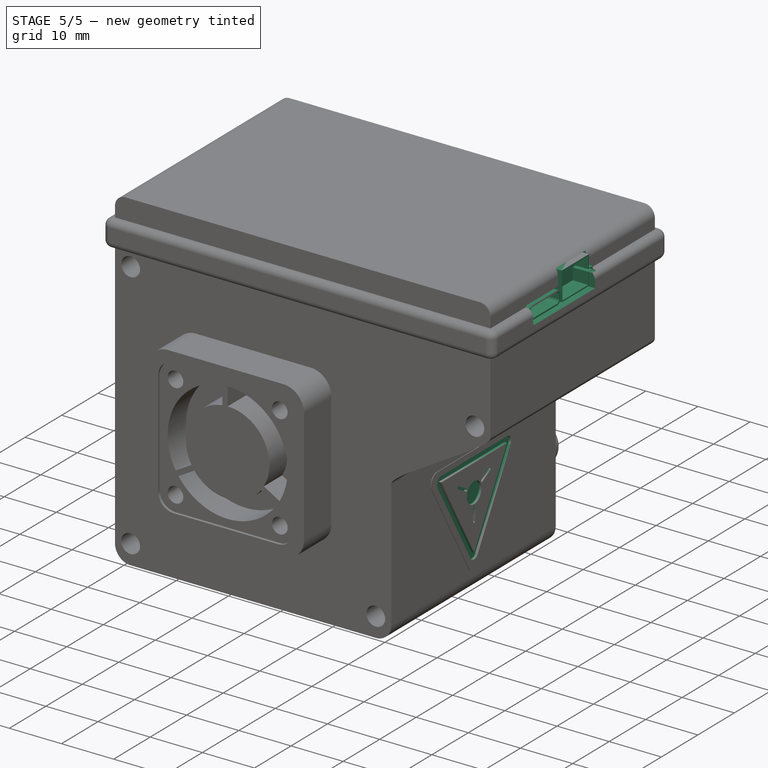
[diagram: stage 5 of 5 — iso view after this stage's code; geometry added in this stage tinted green]
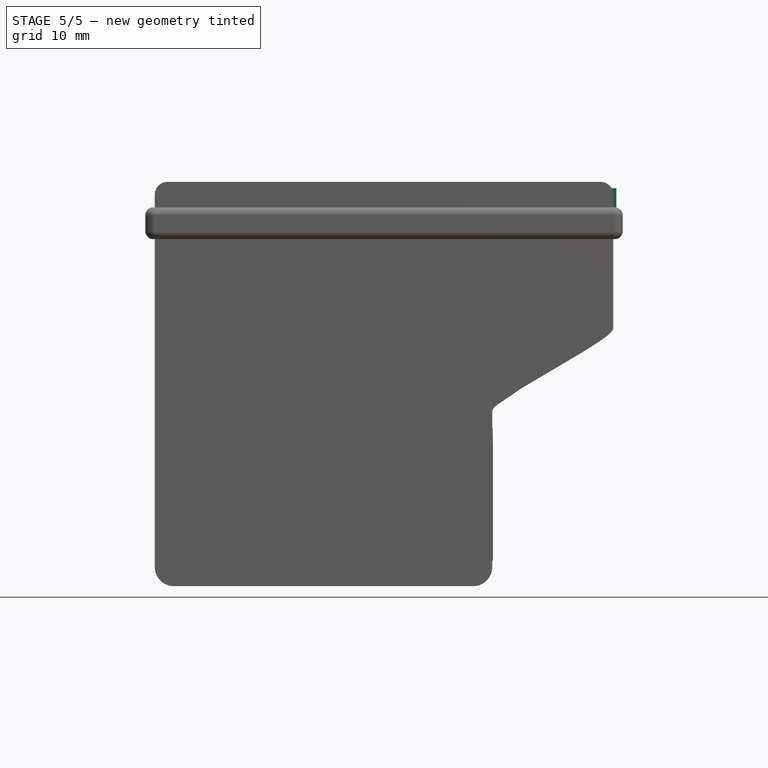
[diagram: stage 5 of 5 — front view after this stage's code; geometry added in this stage tinted green]
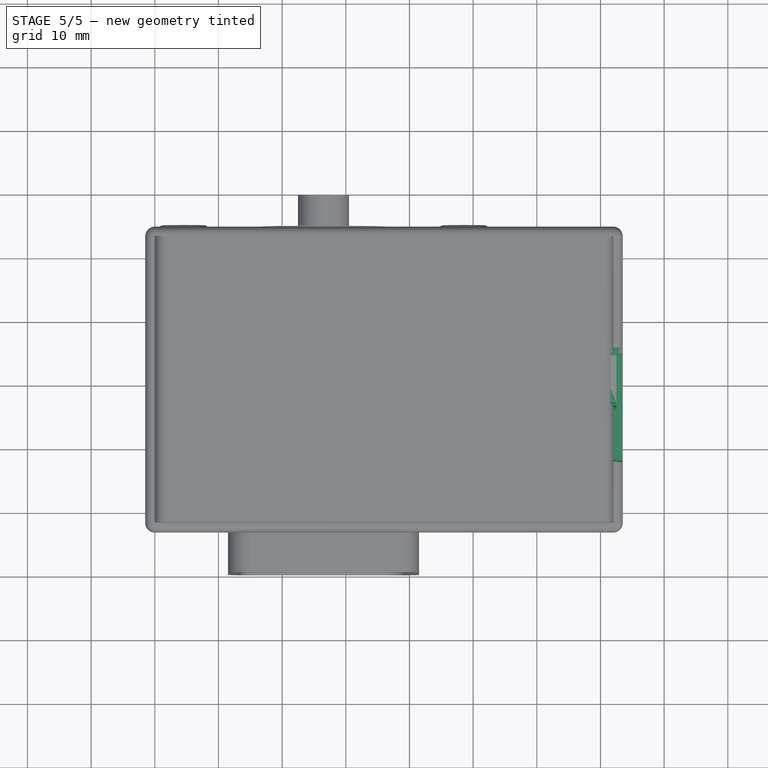
[diagram: stage 5 of 5 — top view after this stage's code; geometry added in this stage tinted green]
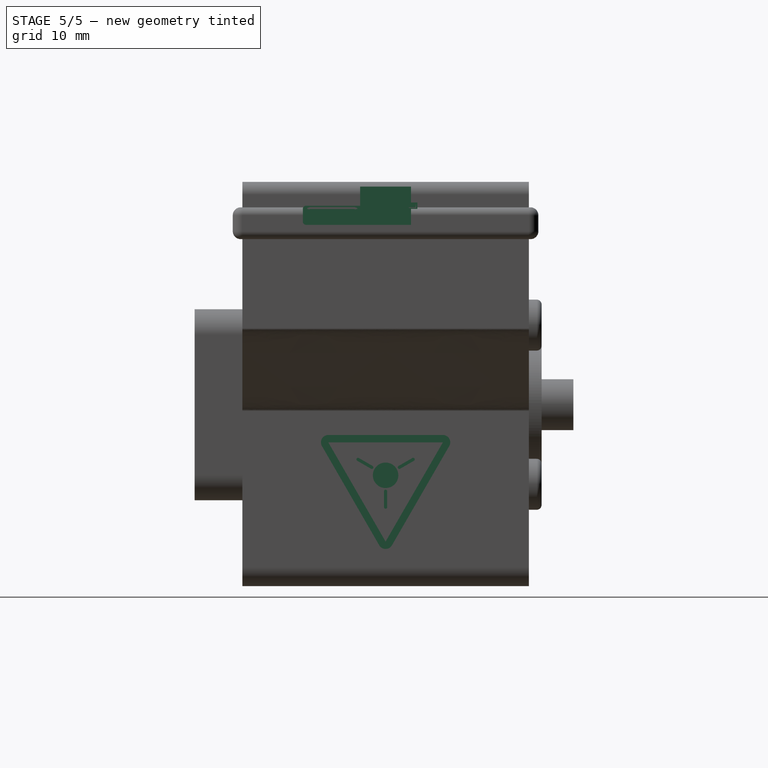
[diagram: stage 5 of 5 — right view after this stage's code; geometry added in this stage tinted green]
FEATURE [Sketcher::SketchObject] Sketch101
  MapMode = 5
  Placement = pos=(53.1,0,0) rot=(0.707107,0,0.707107;3.14159rad)
  Support = -> [Pad021]
  sketch-geometry (30):
    g0: LineSegment StartX=-25.3273 StartY=-1 StartZ=0 EndX=-9.73888 EndY=-9.99999 EndZ=0
    g1: LineSegment StartX=-8.00686 StartY=-9 StartZ=0 EndX=-8.00687 EndY=9 EndZ=0
    g2: LineSegment StartX=-9.73888 StartY=9.99998 StartZ=0 EndX=-25.3273 EndY=1 EndZ=0
    g3: ArcOfCircle CenterX=-24.75 CenterY=0 CenterZ=0 NormalX=0 NormalY=0 NormalZ=1 AngleXU=0 Radius=1.1547 StartAngle=2.09439 EndAngle=4.18879
    g4: ArcOfCircle CenterX=-9.16154 CenterY=9 CenterZ=0 NormalX=0 NormalY=0 NormalZ=1 AngleXU=0 Radius=1.15467 StartAngle=5.72719e-07 EndAngle=2.09439
    g5: ArcOfCircle CenterX=-9.16154 CenterY=-9 CenterZ=0 NormalX=0 NormalY=0 NormalZ=1 AngleXU=0 Radius=1.15468 StartAngle=4.18879 EndAngle=6.28319
    g6: LineSegment StartX=-24.75 StartY=0 StartZ=0 EndX=-9.16154 EndY=-9 EndZ=0
    g7: LineSegment StartX=-9.16154 StartY=9 StartZ=0 EndX=-24.75 EndY=0 EndZ=0
    g8: LineSegment StartX=-9.16154 StartY=9 StartZ=0 EndX=-9.16154 EndY=-9 EndZ=0
    g9: Circle [constr] CenterX=-14.3577 CenterY=0 CenterZ=0 NormalX=0 NormalY=0 NormalZ=1 AngleXU=0 Radius=10.3923
    g10: Circle [constr] CenterX=-14.3577 CenterY=0 CenterZ=0 NormalX=0 NormalY=0 NormalZ=1 AngleXU=0 Radius=1.5
    g11: ArcOfCircle [constr] CenterX=-13.3577 CenterY=1.73205 CenterZ=0 NormalX=0 NormalY=0 NormalZ=1 AngleXU=0 Radius=0.25 StartAngle=2.61799 EndAngle=5.75959
    g12: ArcOfCircle [constr] CenterX=-12.3577 CenterY=3.4641 CenterZ=0 NormalX=0 NormalY=0 NormalZ=1 AngleXU=0 Radius=0.25 StartAngle=5.75959 EndAngle=8.90118
    g13: LineSegment [constr] StartX=-13.1412 StartY=1.60705 StartZ=0 EndX=-12.1412 EndY=3.3391 EndZ=0
    g14: LineSegment [constr] StartX=-13.5742 StartY=1.85705 StartZ=0 EndX=-12.5742 EndY=3.5891 EndZ=0
    g15: ArcOfCircle [constr] CenterX=-13.3577 CenterY=-1.73205 CenterZ=0 NormalX=0 NormalY=0 NormalZ=1 AngleXU=0 Radius=0.25 StartAngle=0.523599 EndAngle=3.66519
    g16: ArcOfCircle [constr] CenterX=-12.3577 CenterY=-3.4641 CenterZ=0 NormalX=0 NormalY=0 NormalZ=1 AngleXU=0 Radius=0.25 StartAngle=3.66519 EndAngle=6.80678
    g17: LineSegment [constr] StartX=-13.5742 StartY=-1.85705 StartZ=0 EndX=-12.5742 EndY=-3.5891 EndZ=0
    g18: LineSegment [constr] StartX=-13.1412 StartY=-1.60705 StartZ=0 EndX=-12.1412 EndY=-3.3391 EndZ=0
    g19: ArcOfCircle [constr] CenterX=-18.3577 CenterY=0 CenterZ=0 NormalX=0 NormalY=0 NormalZ=1 AngleXU=0 Radius=0.25 StartAngle=1.5708 EndAngle=4.71239
    g20: ArcOfCircle [constr] CenterX=-16.3577 CenterY=0 CenterZ=0 NormalX=0 NormalY=0 NormalZ=1 AngleXU=0 Radius=0.25 StartAngle=4.71239 EndAngle=7.85398
    g21: LineSegment [constr] StartX=-18.3577 StartY=-0.25 StartZ=0 EndX=-16.3577 EndY=-0.25 EndZ=0
    g22: LineSegment [constr] StartX=-18.3577 StartY=0.25 StartZ=0 EndX=-16.3577 EndY=0.25 EndZ=0
    g23: LineSegment [constr] StartX=-16.3577 StartY=0.25 StartZ=0 EndX=-16.3577 EndY=-0.25 EndZ=0
    g24: LineSegment [constr] StartX=-12.5742 StartY=-3.5891 StartZ=0 EndX=-12.1412 EndY=-3.3391 EndZ=0
    g25: LineSegment [constr] StartX=-12.5742 StartY=3.5891 StartZ=0 EndX=-12.1412 EndY=3.3391 EndZ=0
    g26: LineSegment [constr] StartX=-13.3577 StartY=-1.73205 StartZ=0 EndX=-13.3577 EndY=1.73205 EndZ=0
    g27: LineSegment [constr] StartX=-13.3577 StartY=1.73205 StartZ=0 EndX=-16.3577 EndY=0 EndZ=0
    g28: LineSegment [constr] StartX=-16.3577 StartY=0 StartZ=0 EndX=-13.3577 EndY=-1.73205 EndZ=0
    g29: Circle [constr] CenterX=-14.3577 CenterY=0 CenterZ=0 NormalX=0 NormalY=0 NormalZ=1 AngleXU=0 Radius=2
  constraints (70):
    c: Equal(g0,g1)
    c: Equal(g0,g2)
    c: Tangent(g2,g3) = -1.5708
    c: Tangent(g0,g3) = -1.5708
    c: Tangent(g2,g4) = -1.5708
    c: Tangent(g1,g4) = -1.5708
    c: Tangent(g0,g5) = -1.5708
    c: Tangent(g1,g5) = -1.5708
    c: PointOnObject(g3,g-1)
    c: Symmetric(g5,g4,g-1)
    c: Coincident(g7,g6)
    c: Equal(g6,g7)
    c: Coincident(g6,g3)
    c: Coincident(g6,g5)
    c: Coincident(g7,g4)
    c: Coincident(g8,g5)
    c: Coincident(g8,g4)
    c: Equal(g8,g7)
    c: DistanceY(g8,g8) = 18
    c: DistanceY(g0,g2) = 2
    c: DistanceX(g3,g-1) = 24.75
    c: PointOnObject(g4,g9)
    c: PointOnObject(g3,g9)
    c: PointOnObject(g5,g9)
    c: Coincident(g10,g9)
    c: Radius(g10) = 1.5
    c: Tangent(g11,g14) = 1.5708
    c: Tangent(g11,g13) = -1.5708
    c: Tangent(g13,g12) = -1.5708
    c: Tangent(g14,g12) = 1.5708
    c: Equal(g11,g12)
    c: Tangent(g15,g18) = 1.5708
    c: Tangent(g15,g17) = -1.5708
    c: Tangent(g17,g16) = -1.5708
    c: Tangent(g18,g16) = 1.5708
    c: Equal(g15,g16)
    c: Tangent(g19,g22) = 1.5708
    c: Tangent(g19,g21) = -1.5708
    c: Tangent(g21,g20) = -1.5708
    c: Tangent(g22,g20) = 1.5708
    c: Horizontal(g21)
    c: Equal(g19,g20)
    c: PointOnObject(g20,g-1)
    c: Equal(g21,g14)
    c: Equal(g14,g17)
    c: Coincident(g23,g20)
    c: Coincident(g23,g20)
    c: Coincident(g12,g25)
    c: Coincident(g25,g12)
    c: Coincident(g24,g16)
    c: Coincident(g24,g16)
    c: Equal(g25,g23)
    c: Equal(g23,g24)
    c: Coincident(g26,g27)
    c: Coincident(g27,g28)
    c: Coincident(g28,g26)
    c: Equal(g26,g27)
    c: Equal(g26,g28)
    c: PointOnObject(g26,g29)
    c: PointOnObject(g27,g29)
    c: PointOnObject(g28,g29)
    c: Coincident(g27,g20)
    c: Coincident(g29,g9)
    c: Coincident(g26,g15)
    c: Coincident(g11,g26)
    c: Distance(g25) = 0.5
    c: Distance(g13) = 2
    c: Symmetric(g16,g12,g-1)
    c: Radius(g29) = 2
    c: Angle(g18,g13) = 2.0944
FEATURE [PartDesign::Pocket] Pocket025  label="Warning sign 2"
  BaseFeature = -> Pad021
  Length = 0.5
  Length2 = 100
  Placement = pos=(0,0,0) rot=(0.57735,-0.57735,0.57735;2.0944rad)
  Profile = -> Sketch101
  Type = 0
FEATURE [Sketcher::SketchObject] Sketch102
  MapMode = 5
  Placement = pos=(53.1,0,0) rot=(0.707107,0,0.707107;3.14159rad)
  Support = -> [Pad021]
  sketch-geometry (30):
    g0: LineSegment [constr] StartX=-23.5773 StartY=-1 StartZ=0 EndX=-10.587 EndY=-8.49999 EndZ=0
    g1: LineSegment [constr] StartX=-8.85493 StartY=-7.5 StartZ=0 EndX=-8.85496 EndY=7.5 EndZ=0
    g2: LineSegment [constr] StartX=-10.5869 StartY=8.49997 StartZ=0 EndX=-23.5773 EndY=1 EndZ=0
    g3: ArcOfCircle [constr] CenterX=-23 CenterY=0 CenterZ=0 NormalX=0 NormalY=0 NormalZ=1 AngleXU=0 Radius=1.1547 StartAngle=2.09439 EndAngle=4.18879
    g4: ArcOfCircle [constr] CenterX=-10.0096 CenterY=7.5 CenterZ=0 NormalX=0 NormalY=0 NormalZ=1 AngleXU=0 Radius=1.15466 StartAngle=1.62154e-06 EndAngle=2.09439
    g5: ArcOfCircle [constr] CenterX=-10.0096 CenterY=-7.5 CenterZ=0 NormalX=0 NormalY=0 NormalZ=1 AngleXU=0 Radius=1.15469 StartAngle=4.18879 EndAngle=6.28319
    g6: LineSegment [constr] StartX=-23 StartY=0 StartZ=0 EndX=-10.0096 EndY=-7.5 EndZ=0
    g7: LineSegment [constr] StartX=-10.0096 StartY=7.5 StartZ=0 EndX=-23 EndY=0 EndZ=0
    g8: LineSegment [constr] StartX=-10.0096 StartY=7.5 StartZ=0 EndX=-10.0096 EndY=-7.5 EndZ=0
    g9: Circle [constr] CenterX=-14.3397 CenterY=0 CenterZ=0 NormalX=0 NormalY=0 NormalZ=1 AngleXU=0 Radius=8.66025
    g10: Circle CenterX=-14.3397 CenterY=0 CenterZ=0 NormalX=0 NormalY=0 NormalZ=1 AngleXU=0 Radius=2
    g11: ArcOfCircle CenterX=-13.0897 CenterY=2.16506 CenterZ=0 NormalX=0 NormalY=0 NormalZ=1 AngleXU=0 Radius=0.25 StartAngle=2.61799 EndAngle=5.75959
    g12: ArcOfCircle CenterX=-11.8397 CenterY=4.33013 CenterZ=0 NormalX=0 NormalY=0 NormalZ=1 AngleXU=0 Radius=0.25 StartAngle=5.75959 EndAngle=8.90118
    g13: LineSegment StartX=-12.8732 StartY=2.04006 StartZ=0 EndX=-11.6232 EndY=4.20513 EndZ=0
    g14: LineSegment StartX=-13.3063 StartY=2.29006 StartZ=0 EndX=-12.0563 EndY=4.45513 EndZ=0
    g15: ArcOfCircle CenterX=-13.0897 CenterY=-2.16506 CenterZ=0 NormalX=0 NormalY=0 NormalZ=1 AngleXU=0 Radius=0.25 StartAngle=0.523599 EndAngle=3.66519
    g16: ArcOfCircle CenterX=-11.8397 CenterY=-4.33013 CenterZ=0 NormalX=0 NormalY=0 NormalZ=1 AngleXU=0 Radius=0.25 StartAngle=3.66519 EndAngle=6.80678
    g17: LineSegment StartX=-13.3063 StartY=-2.29006 StartZ=0 EndX=-12.0563 EndY=-4.45513 EndZ=0
    g18: LineSegment StartX=-12.8732 StartY=-2.04006 StartZ=0 EndX=-11.6232 EndY=-4.20513 EndZ=0
    g19: ArcOfCircle CenterX=-19.3397 CenterY=0 CenterZ=0 NormalX=0 NormalY=0 NormalZ=1 AngleXU=0 Radius=0.25 StartAngle=1.5708 EndAngle=4.71239
    g20: ArcOfCircle CenterX=-16.8397 CenterY=0 CenterZ=0 NormalX=0 NormalY=0 NormalZ=1 AngleXU=0 Radius=0.25 StartAngle=4.71239 EndAngle=7.85398
    g21: LineSegment StartX=-19.3397 StartY=-0.25 StartZ=0 EndX=-16.8397 EndY=-0.25 EndZ=0
    g22: LineSegment StartX=-19.3397 StartY=0.25 StartZ=0 EndX=-16.8397 EndY=0.25 EndZ=0
    g23: LineSegment [constr] StartX=-16.8397 StartY=0.25 StartZ=0 EndX=-16.8397 EndY=-0.25 EndZ=0
    g24: LineSegment [constr] StartX=-12.0563 StartY=-4.45513 StartZ=0 EndX=-11.6232 EndY=-4.20513 EndZ=0
    g25: LineSegment [constr] StartX=-12.0563 StartY=4.45513 StartZ=0 EndX=-11.6232 EndY=4.20513 EndZ=0
    g26: LineSegment [constr] StartX=-13.0897 StartY=-2.16506 StartZ=0 EndX=-13.0897 EndY=2.16506 EndZ=0
    g27: LineSegment [constr] StartX=-13.0897 StartY=2.16506 StartZ=0 EndX=-16.8397 EndY=0 EndZ=0
    g28: LineSegment [constr] StartX=-16.8397 StartY=0 StartZ=0 EndX=-13.0897 EndY=-2.16506 EndZ=0
    g29: Circle [constr] CenterX=-14.3397 CenterY=0 CenterZ=0 NormalX=0 NormalY=0 NormalZ=1 AngleXU=0 Radius=2.5
  constraints (70):
    c: Equal(g0,g1)
    c: Equal(g0,g2)
    c: Tangent(g2,g3) = -1.5708
    c: Tangent(g0,g3) = -1.5708
    c: Tangent(g2,g4) = -1.5708
    c: Tangent(g1,g4) = -1.5708
    c: Tangent(g0,g5) = -1.5708
    c: Tangent(g1,g5) = -1.5708
    c: PointOnObject(g3,g-1)
    c: Symmetric(g5,g4,g-1)
    c: Coincident(g7,g6)
    c: Equal(g6,g7)
    c: Coincident(g6,g3)
    c: Coincident(g6,g5)
    c: Coincident(g7,g4)
    c: Coincident(g8,g5)
    c: Coincident(g8,g4)
    c: Equal(g8,g7)
    c: DistanceY(g8,g8) = 15
    c: DistanceY(g0,g2) = 2
    c: DistanceX(g3,g-1) = 23
    c: PointOnObject(g4,g9)
    c: PointOnObject(g3,g9)
    c: PointOnObject(g5,g9)
    c: Coincident(g10,g9)
    c: Radius(g10) = 2
    c: Tangent(g11,g14) = 1.5708
    c: Tangent(g11,g13) = -1.5708
    c: Tangent(g13,g12) = -1.5708
    c: Tangent(g14,g12) = 1.5708
    c: Equal(g11,g12)
    c: Tangent(g15,g18) = 1.5708
    c: Tangent(g15,g17) = -1.5708
    c: Tangent(g17,g16) = -1.5708
    c: Tangent(g18,g16) = 1.5708
    c: Equal(g15,g16)
    c: Tangent(g19,g22) = 1.5708
    c: Tangent(g19,g21) = -1.5708
    c: Tangent(g21,g20) = -1.5708
    c: Tangent(g22,g20) = 1.5708
    c: Horizontal(g21)
    c: Equal(g19,g20)
    c: PointOnObject(g20,g-1)
    c: Equal(g21,g14)
    c: Equal(g14,g17)
    c: Coincident(g23,g20)
    c: Coincident(g23,g20)
    c: Coincident(g12,g25)
    c: Coincident(g25,g12)
    c: Coincident(g24,g16)
    c: Coincident(g24,g16)
    c: Equal(g25,g23)
    c: Equal(g23,g24)
    c: Coincident(g26,g27)
    c: Coincident(g27,g28)
    c: Coincident(g28,g26)
    c: Equal(g26,g27)
    c: Equal(g26,g28)
    c: PointOnObject(g26,g29)
    c: PointOnObject(g27,g29)
    c: PointOnObject(g28,g29)
    c: Coincident(g27,g20)
    c: Coincident(g29,g9)
    c: Coincident(g26,g15)
    c: Coincident(g11,g26)
    c: Distance(g25) = 0.5
    c: Distance(g13) = 2.5
    c: Symmetric(g16,g12,g-1)
    c: Radius(g29) = 2.5
    c: Angle(g18,g13) = 2.0944
FEATURE [PartDesign::Pocket] Pocket026  label="Warning sign 3"
  BaseFeature = -> Pocket025
  Length = 0.5
  Length2 = 100
  Placement = pos=(0,0,0) rot=(0.57735,-0.57735,0.57735;2.0944rad)
  Profile = -> Sketch102
  Type = 0
FEATURE [Sketcher::SketchObject] Sketch103
  MapMode = 5
  Placement = pos=(73.5,0,0) rot=(0.707107,0,0.707107;3.14159rad)
  Support = -> [Pocket026]
  sketch-geometry (14):
    g0: LineSegment [constr] StartX=0 StartY=0 StartZ=0 EndX=26 EndY=0 EndZ=0
    g1: LineSegment StartX=25 StartY=-4 StartZ=0 EndX=25 EndY=4 EndZ=0
    g2: LineSegment StartX=31 StartY=4 StartZ=0 EndX=31 EndY=-4 EndZ=0
    g3: LineSegment StartX=31 StartY=-4 StartZ=0 EndX=28.5 EndY=-4 EndZ=0
    g4: LineSegment StartX=28.5 StartY=-4 StartZ=0 EndX=28.5 EndY=-5 EndZ=0
    g5: LineSegment StartX=28.5 StartY=-5 StartZ=0 EndX=27.5 EndY=-5 EndZ=0
    g6: LineSegment StartX=27.5 StartY=-5 StartZ=0 EndX=27.5 EndY=-4 EndZ=0
    g7: LineSegment StartX=27.5 StartY=-4 StartZ=0 EndX=25 EndY=-4 EndZ=0
    g8: LineSegment StartX=31 StartY=4 StartZ=0 EndX=28 EndY=4 EndZ=0
    g9: LineSegment StartX=27.5 StartY=13 StartZ=0 EndX=25.5 EndY=13 EndZ=0
    g10: LineSegment StartX=25 StartY=4 StartZ=0 EndX=25 EndY=12.5 EndZ=0
    g11: LineSegment StartX=28 StartY=4 StartZ=0 EndX=28 EndY=12.5 EndZ=0
    g12: ArcOfCircle CenterX=25.5 CenterY=12.5 CenterZ=0 NormalX=0 NormalY=0 NormalZ=1 AngleXU=0 Radius=0.5 StartAngle=1.5708 EndAngle=3.14159
    g13: ArcOfCircle CenterX=27.5 CenterY=12.5 CenterZ=0 NormalX=0 NormalY=0 NormalZ=1 AngleXU=0 Radius=0.5 StartAngle=0 EndAngle=1.5708
  constraints (40):
    c: Coincident(g0,g-1)
    c: Horizontal(g0)
    c: DistanceX(g0,g0) = 26
    c: Coincident(g2,g3)
    c: Coincident(g3,g4)
    c: Coincident(g4,g5)
    c: Coincident(g5,g6)
    c: Coincident(g6,g7)
    c: Coincident(g7,g1)
    c: Horizontal(g7)
    c: Horizontal(g3)
    c: Horizontal(g5)
    c: Vertical(g6)
    c: Vertical(g4)
    c: Vertical(g2)
    c: Vertical(g1)
    c: Horizontal(g6,g3)
    c: DistanceY(g2,g2) = 8
    c: Symmetric(g1,g1,g0)
    c: DistanceX(g1,g2) = 6
    c: Equal(g7,g3)
    c: DistanceX(g5,g5) = 1
    c: DistanceY(g4,g4) = 1
    c: DistanceX(g1,g0) = 1
    c: Coincident(g8,g2)
    c: Horizontal(g8)
    c: Coincident(g10,g1)
    c: Vertical(g10)
    c: Horizontal(g9)
    c: Coincident(g11,g8)
    c: Vertical(g11)
    c: Horizontal(g8,g1)
    c: Tangent(g10,g12) = 1.5708
    c: Tangent(g9,g12) = -1.5708
    c: DistanceX(g1,g8) = 3
    c: DistanceY(g8,g9) = 9
    c: Tangent(g9,g13) = -1.5708
    c: Tangent(g11,g13) = -1.5708
    c: Horizontal(g13,g12)
    c: DistanceX(g13,g11) = 0.5
FEATURE [PartDesign::Pocket] Pocket  label="Connections"
  BaseFeature = -> Pocket026
  Length = 4
  Length2 = 100
  Placement = pos=(0,0,0) rot=(0.57735,-0.57735,0.57735;2.0944rad)
  Profile = -> Sketch103
  Type = 0
FEATURE [Sketcher::SketchObject] Sketch  label="Sketch105"
  MapMode = 5
  Placement = pos=(69.5,0,0) rot=(0.707107,0,0.707107;3.14159rad)
  Support = -> [Pocket]
  sketch-geometry (16):
    g0: LineSegment StartX=26.0795 StartY=12.6875 StartZ=0 EndX=26.8795 EndY=12.6875 EndZ=0
    g1: LineSegment StartX=27.7795 StartY=11.7875 StartZ=0 EndX=27.7795 EndY=4.98748 EndZ=0
    g2: LineSegment StartX=26.8795 StartY=4.08748 StartZ=0 EndX=26.0795 EndY=4.08748 EndZ=0
    g3: LineSegment StartX=25.1795 StartY=4.98748 StartZ=0 EndX=25.1795 EndY=11.7875 EndZ=0
    g4: ArcOfCircle CenterX=26.8795 CenterY=4.98748 CenterZ=0 NormalX=0 NormalY=0 NormalZ=1 AngleXU=0 Radius=0.9 StartAngle=4.71239 EndAngle=6.28319
    g5: ArcOfCircle CenterX=26.0795 CenterY=4.98748 CenterZ=0 NormalX=0 NormalY=0 NormalZ=1 AngleXU=0 Radius=0.9 StartAngle=3.14159 EndAngle=4.71239
    g6: ArcOfCircle CenterX=26.0795 CenterY=11.7875 CenterZ=0 NormalX=0 NormalY=0 NormalZ=1 AngleXU=0 Radius=0.9 StartAngle=1.5708 EndAngle=3.14159
    g7: ArcOfCircle CenterX=26.8795 CenterY=11.7875 CenterZ=0 NormalX=0 NormalY=0 NormalZ=1 AngleXU=0 Radius=0.9 StartAngle=0 EndAngle=1.5708
    g8: LineSegment StartX=26.0795 StartY=12.3875 StartZ=0 EndX=26.8795 EndY=12.3875 EndZ=0
    g9: LineSegment StartX=27.4795 StartY=11.7875 StartZ=0 EndX=27.4795 EndY=4.98748 EndZ=0
    g10: LineSegment StartX=26.8795 StartY=4.38748 StartZ=0 EndX=26.0795 EndY=4.38748 EndZ=0
    g11: LineSegment StartX=25.4795 StartY=4.98748 StartZ=0 EndX=25.4795 EndY=11.7875 EndZ=0
    g12: ArcOfCircle CenterX=26.8795 CenterY=4.98748 CenterZ=0 NormalX=0 NormalY=0 NormalZ=1 AngleXU=0 Radius=0.6 StartAngle=4.71239 EndAngle=6.28319
    g13: ArcOfCircle CenterX=26.0795 CenterY=4.98748 CenterZ=0 NormalX=0 NormalY=0 NormalZ=1 AngleXU=0 Radius=0.6 StartAngle=3.14159 EndAngle=4.71239
    g14: ArcOfCircle CenterX=26.0795 CenterY=11.7875 CenterZ=0 NormalX=0 NormalY=0 NormalZ=1 AngleXU=0 Radius=0.6 StartAngle=1.5708 EndAngle=3.14159
    g15: ArcOfCircle CenterX=26.8795 CenterY=11.7875 CenterZ=0 NormalX=0 NormalY=0 NormalZ=1 AngleXU=0 Radius=0.6 StartAngle=0 EndAngle=1.5708
  constraints (38):
    c: Horizontal(g0)
    c: Horizontal(g2)
    c: Vertical(g1)
    c: Vertical(g3)
    c: Tangent(g2,g4) = 1.5708
    c: Tangent(g1,g4) = 1.5708
    c: Tangent(g2,g5) = 1.5708
    c: Tangent(g3,g5) = 1.5708
    c: Tangent(g3,g6) = 1.5708
    c: Tangent(g0,g6) = 1.5708
    c: Tangent(g0,g7) = 1.5708
    c: Tangent(g1,g7) = 1.5708
    c: Horizontal(g6,g7)
    c: Vertical(g4,g7)
    c: Horizontal(g5,g4)
    c: DistanceX(g3,g1) = 2.6
    c: DistanceX(g3,g5) = 0.9
    c: DistanceY(g2,g0) = 8.6
    c: Horizontal(g8)
    c: Horizontal(g10)
    c: Vertical(g9)
    c: Vertical(g11)
    c: Tangent(g10,g12) = 1.5708
    c: Tangent(g9,g12) = 1.5708
    c: Tangent(g10,g13) = 1.5708
    c: Tangent(g11,g13) = 1.5708
    c: Tangent(g11,g14) = 1.5708
    c: Tangent(g8,g14) = 1.5708
    c: Tangent(g8,g15) = 1.5708
    c: Tangent(g9,g15) = 1.5708
    c: Horizontal(g14,g15)
    c: Vertical(g12,g15)
    c: Horizontal(g13,g12)
    c: DistanceX(g11,g9) = 2
    c: DistanceY(g10,g8) = 8
    c: Vertical(g5,g10)
    c: Horizontal(g5,g11)
    c: DistanceX(g3,g11) = 0.3
FEATURE [PartDesign::Pad] Pad  label="Micro usb"
  BaseFeature = -> Pocket
  Length = 3
  Length2 = 100
  Placement = pos=(0,0,0) rot=(0.57735,-0.57735,0.57735;2.0944rad)
  Profile = -> Sketch
  Type = 0
FEATURE [Sketcher::SketchObject] Sketch104
  MapMode = 5
  Placement = pos=(69.5,0,0) rot=(0.707107,0,0.707107;3.14159rad)
  Support = -> [Pad]
  sketch-geometry (16):
    g0: LineSegment StartX=25.24 StartY=3.74385 StartZ=0 EndX=30.74 EndY=3.74385 EndZ=0
    g1: LineSegment StartX=30.74 StartY=3.74385 StartZ=0 EndX=30.74 EndY=-3.75615 EndZ=0
    g2: LineSegment StartX=25.24 StartY=-3.75615 StartZ=0 EndX=25.24 EndY=3.74385 EndZ=0
    g3: LineSegment StartX=25.49 StartY=3.54385 StartZ=0 EndX=30.49 EndY=3.54385 EndZ=0
    g4: LineSegment StartX=30.49 StartY=3.54385 StartZ=0 EndX=30.49 EndY=-3.50084 EndZ=0
    g5: LineSegment StartX=25.49 StartY=-3.55615 StartZ=0 EndX=25.49 EndY=3.54385 EndZ=0
    g6: LineSegment StartX=25.24 StartY=-3.75615 StartZ=0 EndX=27.64 EndY=-3.75615 EndZ=0
    g7: LineSegment StartX=27.64 StartY=-3.75615 StartZ=0 EndX=27.64 EndY=-4.7788 EndZ=0
    g8: LineSegment StartX=27.64 StartY=-4.7788 StartZ=0 EndX=28.34 EndY=-4.7788 EndZ=0
    g9: LineSegment StartX=28.34 StartY=-4.7788 StartZ=0 EndX=28.34 EndY=-3.75615 EndZ=0
    g10: LineSegment StartX=28.34 StartY=-3.75615 StartZ=0 EndX=30.74 EndY=-3.75615 EndZ=0
    g11: LineSegment StartX=25.49 StartY=-3.55615 StartZ=0 EndX=27.74 EndY=-3.55615 EndZ=0
    g12: LineSegment StartX=27.74 StartY=-3.55615 StartZ=0 EndX=27.74 EndY=-4.67466 EndZ=0
    g13: LineSegment StartX=27.74 StartY=-4.67466 StartZ=0 EndX=28.24 EndY=-4.67466 EndZ=0
    g14: LineSegment StartX=28.24 StartY=-4.67466 StartZ=0 EndX=28.24 EndY=-3.50084 EndZ=0
    g15: LineSegment StartX=28.24 StartY=-3.50084 StartZ=0 EndX=30.49 EndY=-3.50084 EndZ=0
  constraints (43):
    c: Coincident(g0,g1)
    c: Coincident(g2,g0)
    c: Horizontal(g0)
    c: Vertical(g1)
    c: Vertical(g2)
    c: Coincident(g3,g4)
    c: Coincident(g5,g3)
    c: Horizontal(g3)
    c: Vertical(g4)
    c: Vertical(g5)
    c: DistanceY(g2,g2) = 7.5
    c: DistanceY(g5,g5) = 7.1
    c: DistanceY(g3,g0) = 0.2
    c: DistanceX(g0,g3) = 0.25
    c: Coincident(g6,g7)
    c: Coincident(g7,g8)
    c: Coincident(g8,g9)
    c: Coincident(g9,g10)
    c: Coincident(g10,g1)
    c: DistanceX(g0,g0) = 5.5
    c: DistanceX(g3,g3) = 5
    c: Coincident(g6,g2)
    c: Horizontal(g6)
    c: Horizontal(g10)
    c: Horizontal(g9,g6)
    c: Horizontal(g8)
    c: Vertical(g9)
    c: Vertical(g7)
    c: DistanceX(g8,g8) = 0.7
    c: Equal(g10,g6)
    c: Coincident(g11,g12)
    c: Coincident(g12,g13)
    c: Coincident(g13,g14)
    c: Coincident(g14,g15)
    c: Coincident(g15,g4)
    c: Coincident(g11,g5)
    c: Horizontal(g11)
    c: Horizontal(g15)
    c: Vertical(g12)
    c: Vertical(g14)
    c: Horizontal(g13)
    c: Equal(g11,g15)
    c: DistanceX(g13,g13) = 0.5
FEATURE [PartDesign::Pad] Pad022  label="SPI"
  BaseFeature = -> Pad
  Length = 3
  Length2 = 100
  Placement = pos=(0,0,0) rot=(0.57735,-0.57735,0.57735;2.0944rad)
  Profile = -> Sketch104
  Type = 0
FEATURE [PartDesign::Body] Body001  label="OPC-N3"
  Group = -> [Sketch084,Pad015,Sketch085,Pad016,Sketch086,Pad017,Sketch087,Pad018,Sketch088,Pad019,Fillet,Fillet001,Fillet002,Fillet003,Sketch089,Pocket017,Sketch090,Sketch091,Sketch092,AdditivePipe006,Pocket018,Sketch093,Pocket019,Sketch094,Pad020,Sketch095,Pocket020,Sketch096,Pocket021,Sketch097,Sketch098,Pocket022,Pocket023,Sketch099,Pocket024,Sketch100,Pad021,Sketch101,Pocket025,Sketch102,Pocket026,+6 more]
  Origin = -> Origin001
  Tip = -> Pad022
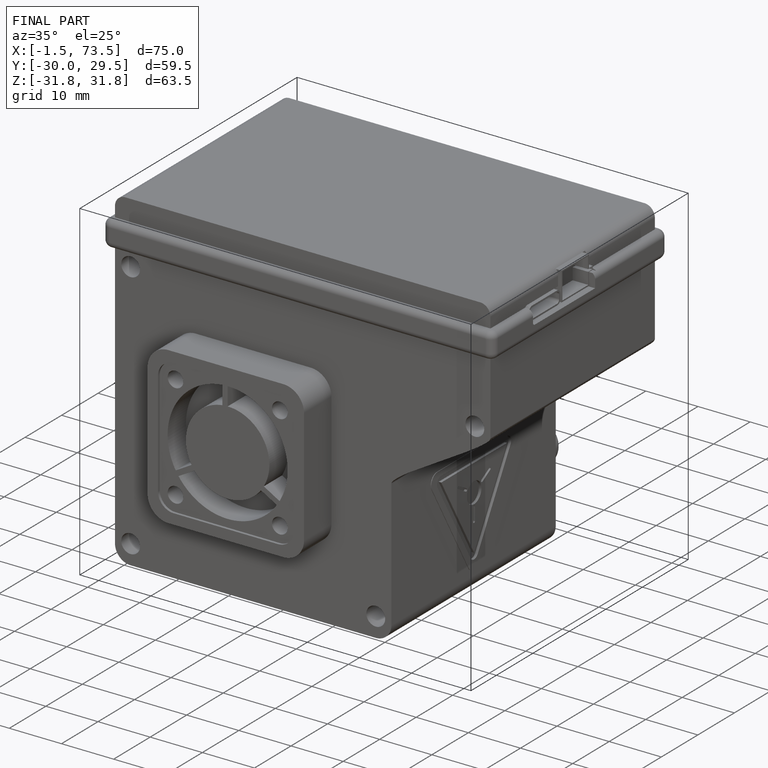
[diagram: finished part — iso view with bounding-box wireframe]
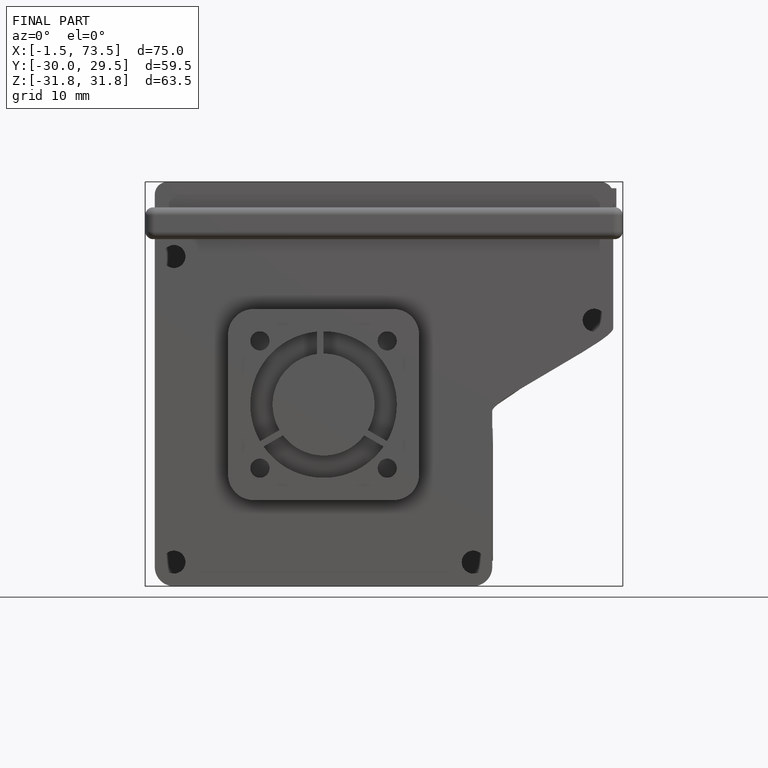
[diagram: finished part — front view with bounding-box wireframe]
